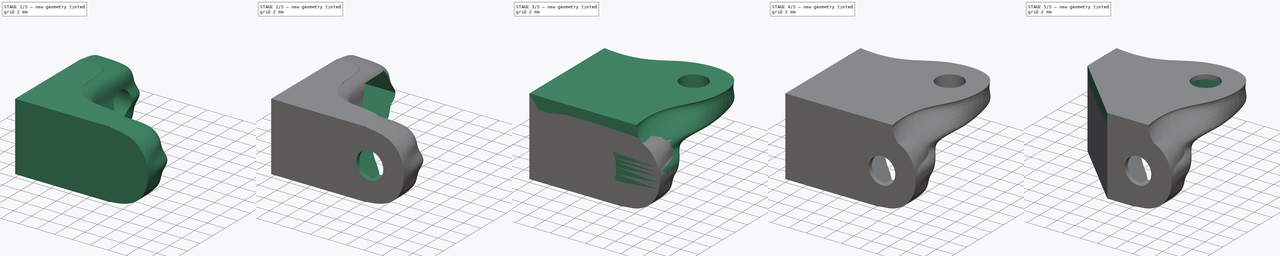
[diagram: build sequence overview — one tinted view per stage of 5, left to right]
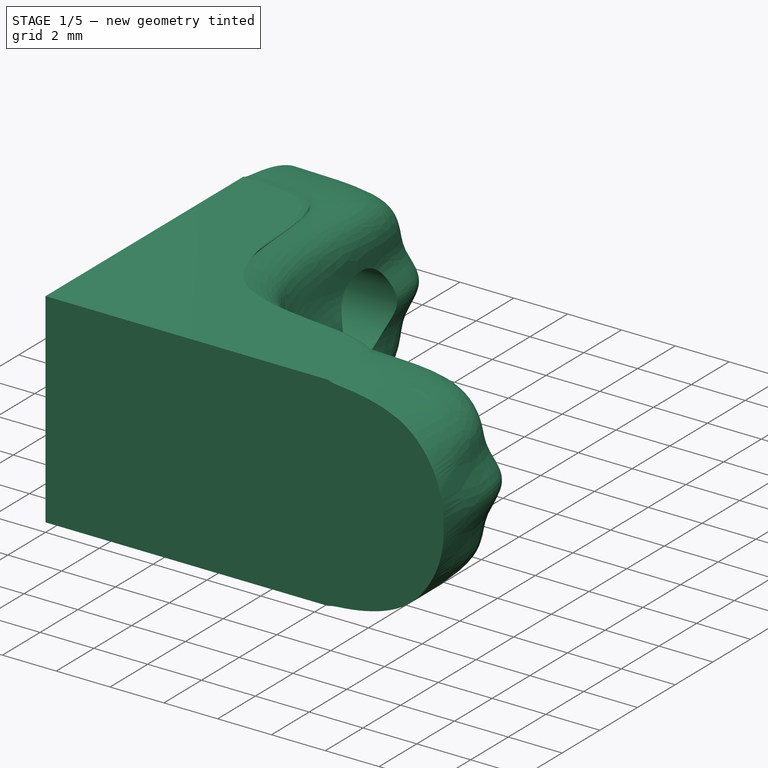
[diagram: stage 1 of 5 — iso view after this stage's code; geometry added in this stage tinted green]
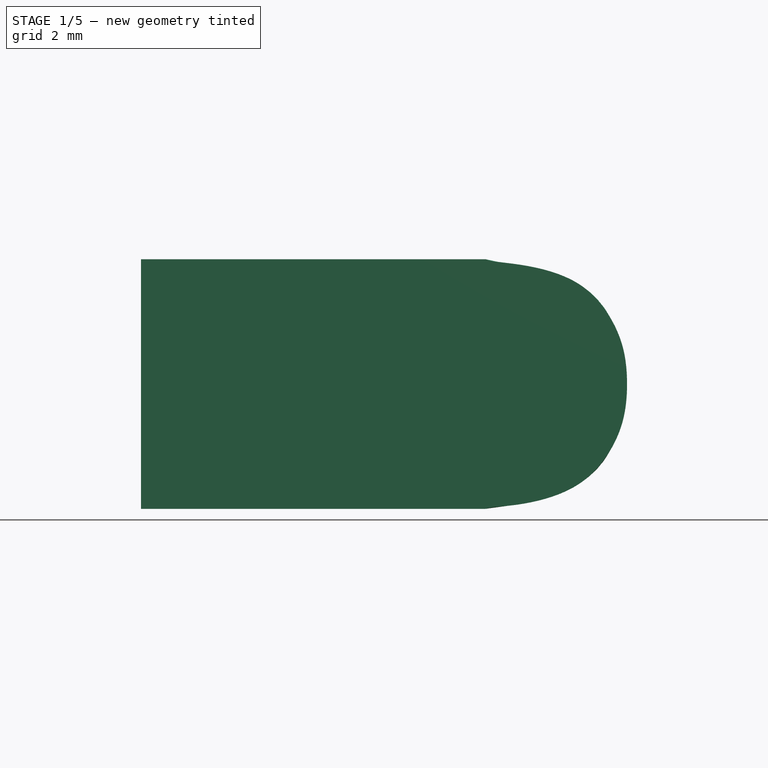
[diagram: stage 1 of 5 — front view after this stage's code; geometry added in this stage tinted green]
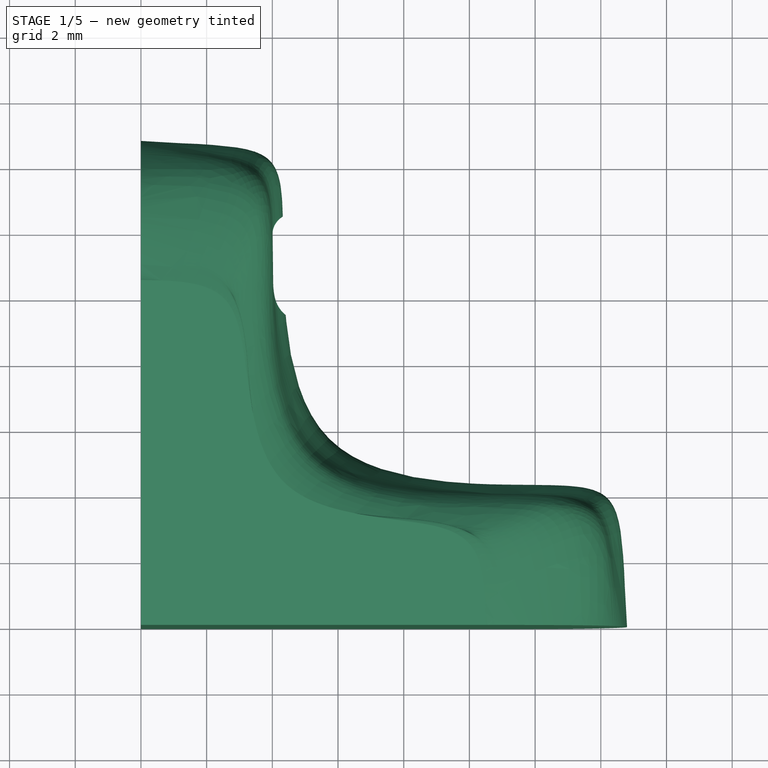
[diagram: stage 1 of 5 — top view after this stage's code; geometry added in this stage tinted green]
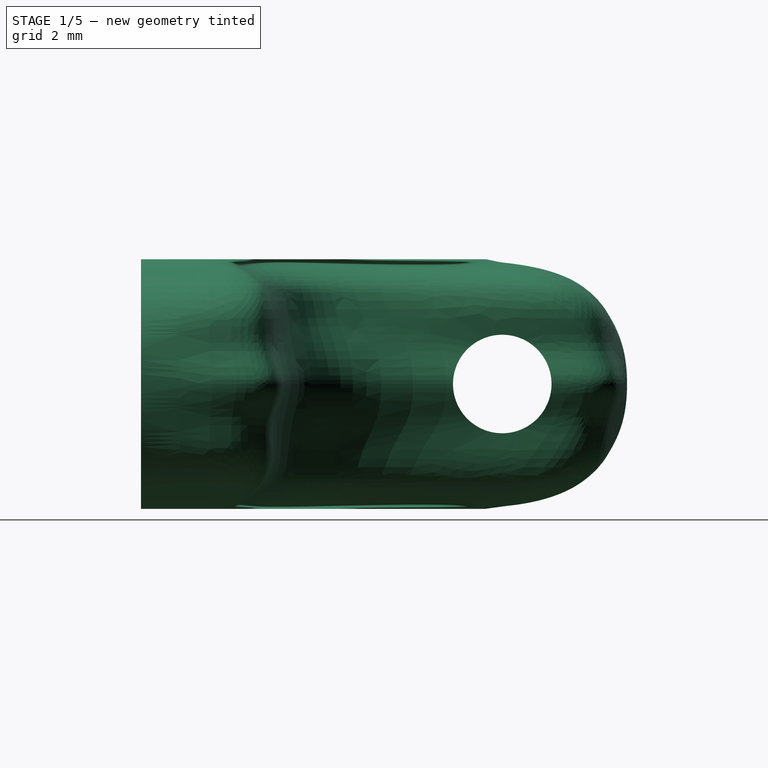
[diagram: stage 1 of 5 — right view after this stage's code; geometry added in this stage tinted green]
FCSTD DOCUMENT  (FreeCAD 1.1R)
Label: M3_Brackets
License: All rights reserved
LicenseURL: https://en.wikipedia.org/wiki/All_rights_reserved
objects: Sketcher::SketchObject×35, PartDesign::Pocket×12, App::Point×8, PartDesign::AdditiveLoft×2, PartDesign::Chamfer×2, PartDesign::Body×2, App::DocumentObjectGroup×1
note: 120 computed .brp shape members not serialized (recipe doc carries the construction recipe); baked Part::Feature solids carry a one-line shape summary decoded from their .brp

FEATURE [PartDesign::Body] Body  label="3_ways"
  AllowCompound = false
  Group = -> [Sketch,Sketch002,AdditiveLoft,Sketch004,Sketch005,Sketch007,Pocket,Pocket001,Pocket002,Sketch008,Pocket003,Sketch009,Pocket004,Sketch010,Pocket005,Sketch011,Chamfer]
  Origin = -> Origin
  Placement = pos=(0,0,-20.564) rot=(0.862856,-0.357407,0.357407;1.71777rad)
  Tip = -> Chamfer
FEATURE [App::Point] Origin011
  Role = Origin
FEATURE [App::Point] Origin013
  Role = Origin
FEATURE [App::Point] Origin015
  Role = Origin
FEATURE [Sketcher::SketchObject] Sketch030
  ArcFitTolerance = 1e-06
  AttachmentOffset = pos=(0,0,1.2) rot=(0,0,1;0rad)
  AttachmentSupport = -> [Origin010]
  ExternalTypes = [0]
  FullyConstrained = true
  MakeInternals = false
  MapMode = 5
  Placement = pos=(0,0,1.2) rot=(0,0,1;0rad)
  sketch-geometry (16):
    g0: LineSegment StartX=0 StartY=10.5 StartZ=0 EndX=0 EndY=0 EndZ=0
    g1: LineSegment StartX=0 StartY=0 StartZ=0 EndX=10.5 EndY=0 EndZ=0
    g2-g8: Circle [constr] x7 (B-spline internal-alignment scaffolding for g9; pole/knot coordinates omitted)
    g9: BSplineCurve PolesCount=7 KnotsCount=5 Degree=3 IsPeriodic=0
    g10-g14: GeomPoint [constr] x5 (B-spline internal-alignment scaffolding for g9; pole/knot coordinates omitted)
    g15: LineSegment [constr] StartX=0 StartY=0 StartZ=0 EndX=70.7107 EndY=70.7107 EndZ=0
  constraints (22):
    c: PointOnObject(g0,g-2)
    c: Coincident(g0,g-1)
    c: Coincident(g0,g1)
    c: PointOnObject(g1,g-1)
    c: Weight(g2) = 1
    c: Equal(g2, g3-g8) x6
    c: InternalAlignment(g2-g8 -> g9) x7
    c: InternalAlignment(g10-g14 -> g9) x5
    c: Coincident(g2,g0)
    c: Coincident(g8,g1)
    c: Coincident(g15,g0)
    c: Symmetric(g6,g4,g15)
    c: Symmetric(g3,g7,g15)
    c: PointOnObject(g5,g15)
    c: Symmetric(g9,g9,g15)
    c: DistanceY(g0,g0) = 10.5
    c: Distance(g4,g-1) = 10
    c: DistanceY(g-1,g3) = 10.5
    c: Distance(g5,g-1) = 4.5
    c: Distance(g3,g-2) = 2
    c: Distance(g11,g-2) = 3
    c: Distance(g15,g15) = 100
FEATURE [Sketcher::SketchObject] Sketch031
  ArcFitTolerance = 1e-06
  AttachmentOffset = pos=(0,0,4) rot=(0,0,1;0rad)
  AttachmentSupport = -> [Origin012]
  ExternalTypes = [0]
  FullyConstrained = true
  MakeInternals = false
  MapMode = 5
  Placement = pos=(0,0,4) rot=(0,0,1;0rad)
  sketch-geometry (16):
    g0: LineSegment StartX=0 StartY=14.7 StartZ=0 EndX=0 EndY=0 EndZ=0
    g1: LineSegment StartX=0 StartY=0 StartZ=0 EndX=14.7 EndY=0 EndZ=0
    g2-g8: Circle [constr] x7 (B-spline internal-alignment scaffolding for g9; pole/knot coordinates omitted)
    g9: BSplineCurve PolesCount=7 KnotsCount=5 Degree=3 IsPeriodic=0
    g10-g14: GeomPoint [constr] x5 (B-spline internal-alignment scaffolding for g9; pole/knot coordinates omitted)
    g15: LineSegment [constr] StartX=0 StartY=0 StartZ=0 EndX=70.7107 EndY=70.7107 EndZ=0
  constraints (22):
    c: PointOnObject(g0,g-2)
    c: Coincident(g0,g-1)
    c: Coincident(g0,g1)
    c: PointOnObject(g1,g-1)
    c: Weight(g2) = 1
    c: Equal(g2, g3-g8) x6
    c: InternalAlignment(g2-g8 -> g9) x7
    c: InternalAlignment(g10-g14 -> g9) x5
    c: Coincident(g2,g0)
    c: Coincident(g8,g1)
    c: Coincident(g15,g0)
    c: Symmetric(g6,g4,g15)
    c: Symmetric(g3,g7,g15)
    c: PointOnObject(g5,g15)
    c: Symmetric(g9,g9,g15)
    c: DistanceY(g0,g0) = 14.7
    c: Distance(g4,g-1) = 14.6
    c: DistanceY(g-1,g3) = 14.2
    c: Distance(g5,g-1) = 5.2
    c: Distance(g3,g-2) = 3.5
    c: Distance(g11,g-2) = 4
    c: Distance(g15,g-1) = 100
FEATURE [Sketcher::SketchObject] Sketch032
  ArcFitTolerance = 1e-06
  AttachmentSupport = -> [Origin010]
  ExternalTypes = [0]
  FullyConstrained = true
  MakeInternals = false
  MapMode = 5
  Placement = pos=(0,0,0) rot=(0.57735,0.57735,0.57735;2.0944rad)
  sketch-geometry (1):
    g0: Circle CenterX=11 CenterY=5 CenterZ=0 NormalX=0 NormalY=0 NormalZ=1 AngleXU=0 Radius=1.5
  constraints (3):
    c: Diameter(g0) = 3
    c: Distance(g0,g-1) = 5
    c: Distance(g0,g-2) = 11
FEATURE [Sketcher::SketchObject] Sketch033
  ArcFitTolerance = 1e-06
  AttachmentSupport = -> [Origin010]
  ExternalTypes = [0]
  FullyConstrained = true
  MakeInternals = false
  MapMode = 5
  Placement = pos=(0,0,0) rot=(1,0,0;1.5708rad)
  sketch-geometry (1):
    g0: Circle CenterX=11 CenterY=5 CenterZ=0 NormalX=0 NormalY=0 NormalZ=1 AngleXU=0 Radius=1.5
  constraints (3):
    c: Diameter(g0) = 3
    c: Distance(g0,g-1) = 5
    c: Distance(g0,g-2) = 11
FEATURE [Sketcher::SketchObject] Sketch034
  ArcFitTolerance = 1e-06
  AttachmentSupport = -> [Origin010]
  ExternalTypes = [0]
  FullyConstrained = true
  MakeInternals = false
  MapMode = 5
  sketch-geometry (1):
    g0: Circle CenterX=11 CenterY=11 CenterZ=0 NormalX=0 NormalY=0 NormalZ=1 AngleXU=0 Radius=1.5
  constraints (3):
    c: Diameter(g0) = 3
    c: Distance(g0,g-2) = 11
    c: Distance(g0,g-1) = 11
FEATURE [Sketcher::SketchObject] Sketch035
  ArcFitTolerance = 1e-06
  AttachmentOffset = pos=(0,0,-6) rot=(0,0,1;0rad)
  AttachmentSupport = -> [Origin010]
  ExternalTypes = [0]
  FullyConstrained = true
  MakeInternals = false
  MapMode = 5
  Placement = pos=(0,6,-1.3e-15) rot=(1,0,0;1.5708rad)
  sketch-geometry (7):
    g0: LineSegment StartX=12.625 StartY=7.81458 StartZ=0 EndX=9.375 EndY=7.81458 EndZ=0
    g1: LineSegment StartX=9.375 StartY=7.81458 StartZ=0 EndX=7.75 EndY=5 EndZ=0
    g2: LineSegment StartX=7.75 StartY=5 StartZ=0 EndX=9.375 EndY=2.18542 EndZ=0
    g3: LineSegment StartX=9.375 StartY=2.18542 StartZ=0 EndX=12.625 EndY=2.18542 EndZ=0
    g4: LineSegment StartX=12.625 StartY=2.18542 StartZ=0 EndX=14.25 EndY=5 EndZ=0
    g5: LineSegment StartX=14.25 StartY=5 StartZ=0 EndX=12.625 EndY=7.81458 EndZ=0
    g6: Circle [constr] CenterX=11 CenterY=5 CenterZ=0 NormalX=0 NormalY=0 NormalZ=1 AngleXU=0 Radius=3.25
  constraints (17):
    c: Coincident(g0,g1)
    c: Coincident(g1,g2)
    c: Coincident(g2,g3)
    c: Coincident(g3,g4)
    c: Coincident(g4,g5)
    c: Coincident(g5,g0)
    c: Equal(g0, g1-g5) x5
    c: PointOnObject(g0,g6)
    c: PointOnObject(g1,g6)
    c: PointOnObject(g2,g6)
    c: PointOnObject(g3,g6)
    c: PointOnObject(g4,g6)
    c: PointOnObject(g5,g6)
    c: Radius(g6) = 3.25
    c: Distance(g6,g-1) = 5
    c: Distance(g6,g-2) = 11
    c: Parallel(g3,g-1)
FEATURE [Sketcher::SketchObject] Sketch036
  ArcFitTolerance = 1e-06
  AttachmentOffset = pos=(0,0,6) rot=(0,0,1;0rad)
  AttachmentSupport = -> [Origin010]
  ExternalTypes = [0]
  FullyConstrained = true
  MakeInternals = false
  MapMode = 5
  Placement = pos=(6,0,0) rot=(0.57735,0.57735,0.57735;2.0944rad)
  sketch-geometry (7):
    g0: LineSegment StartX=9.375 StartY=7.81458 StartZ=0 EndX=7.75 EndY=5 EndZ=0
    g1: LineSegment StartX=7.75 StartY=5 StartZ=0 EndX=9.375 EndY=2.18542 EndZ=0
    g2: LineSegment StartX=9.375 StartY=2.18542 StartZ=0 EndX=12.625 EndY=2.18542 EndZ=0
    g3: LineSegment StartX=12.625 StartY=2.18542 StartZ=0 EndX=14.25 EndY=5 EndZ=0
    g4: LineSegment StartX=14.25 StartY=5 StartZ=0 EndX=12.625 EndY=7.81458 EndZ=0
    g5: LineSegment StartX=12.625 StartY=7.81458 StartZ=0 EndX=9.375 EndY=7.81458 EndZ=0
    g6: Circle [constr] CenterX=11 CenterY=5 CenterZ=0 NormalX=0 NormalY=0 NormalZ=1 AngleXU=0 Radius=3.25
  constraints (17):
    c: Coincident(g0,g1)
    c: Coincident(g1,g2)
    c: Coincident(g2,g3)
    c: Coincident(g3,g4)
    c: Coincident(g4,g5)
    c: Coincident(g5,g0)
    c: Equal(g0, g1-g5) x5
    c: PointOnObject(g0,g6)
    c: PointOnObject(g1,g6)
    c: PointOnObject(g2,g6)
    c: PointOnObject(g3,g6)
    c: PointOnObject(g4,g6)
    c: PointOnObject(g5,g6)
    c: Radius(g6) = 3.25
    c: Parallel(g2,g-1)
    c: Distance(g6,g-1) = 5
    c: Distance(g6,g-2) = 11
FEATURE [Sketcher::SketchObject] Sketch037  label="Hex Top001"
  ArcFitTolerance = 1e-06
  AttachmentSupport = -> [Origin010]
  ExternalTypes = [0]
  FullyConstrained = true
  MakeInternals = false
  MapMode = 5
  sketch-geometry (8):
    g0: LineSegment StartX=13.2981 StartY=8.7019 StartZ=0 EndX=14.1393 EndY=11.8412 EndZ=0
    g1: LineSegment StartX=14.1393 StartY=11.8412 StartZ=0 EndX=11.8412 EndY=14.1393 EndZ=0
    g2: LineSegment StartX=11.8412 StartY=14.1393 StartZ=0 EndX=8.7019 EndY=13.2981 EndZ=0
    g3: LineSegment StartX=8.7019 StartY=13.2981 StartZ=0 EndX=7.86074 EndY=10.1588 EndZ=0
    g4: LineSegment StartX=7.86074 StartY=10.1588 StartZ=0 EndX=10.1588 EndY=7.86074 EndZ=0
    g5: LineSegment StartX=10.1588 StartY=7.86074 StartZ=0 EndX=13.2981 EndY=8.7019 EndZ=0
    g6: Circle [constr] CenterX=11 CenterY=11 CenterZ=0 NormalX=0 NormalY=0 NormalZ=1 AngleXU=0 Radius=3.25
    g7: LineSegment [constr] StartX=0 StartY=0 StartZ=0 EndX=11 EndY=11 EndZ=0
  constraints (19):
    c: Coincident(g0,g1)
    c: Coincident(g1,g2)
    c: Coincident(g2,g3)
    c: Coincident(g3,g4)
    c: Coincident(g4,g5)
    c: Coincident(g5,g0)
    c: Equal(g0, g1-g5) x5
    c: PointOnObject(g0,g6)
    c: PointOnObject(g1,g6)
    c: PointOnObject(g2,g6)
    c: PointOnObject(g3,g6)
    c: PointOnObject(g4,g6)
    c: PointOnObject(g5,g6)
    c: Radius(g6) = 3.25
    c: Distance(g6,g-1) = 11
    c: Distance(g6,g-2) = 11
    c: Coincident(g7,g-1)
    c: Coincident(g7,g6)
    c: Perpendicular(g4,g7)
FEATURE [Sketcher::SketchObject] Sketch038
  ArcFitTolerance = 1e-06
  AttachmentOffset = pos=(0,0,3) rot=(0,0,1;0rad)
  AttachmentSupport = -> [Origin014]
  ExternalTypes = [0]
  FullyConstrained = true
  MakeInternals = false
  MapMode = 5
  Placement = pos=(0,0,3) rot=(0,0,1;0rad)
  sketch-geometry (16):
    g0: LineSegment StartX=0 StartY=14.3 StartZ=0 EndX=0 EndY=0 EndZ=0
    g1: LineSegment StartX=0 StartY=0 StartZ=0 EndX=14.3 EndY=0 EndZ=0
    g2-g8: Circle [constr] x7 (B-spline internal-alignment scaffolding for g9; pole/knot coordinates omitted)
    g9: BSplineCurve PolesCount=7 KnotsCount=5 Degree=3 IsPeriodic=0
    g10-g14: GeomPoint [constr] x5 (B-spline internal-alignment scaffolding for g9; pole/knot coordinates omitted)
    g15: LineSegment [constr] StartX=0 StartY=0 StartZ=0 EndX=70.7107 EndY=70.7107 EndZ=0
  constraints (22):
    c: PointOnObject(g0,g-2)
    c: Coincident(g0,g-1)
    c: Coincident(g0,g1)
    c: PointOnObject(g1,g-1)
    c: Weight(g2) = 1
    c: Equal(g2, g3-g8) x6
    c: InternalAlignment(g2-g8 -> g9) x7
    c: InternalAlignment(g10-g14 -> g9) x5
    c: Coincident(g2,g0)
    c: Coincident(g8,g1)
    c: Coincident(g15,g0)
    c: Symmetric(g6,g4,g15)
    c: Symmetric(g3,g7,g15)
    c: PointOnObject(g5,g15)
    c: Symmetric(g9,g9,g15)
    c: DistanceY(g0,g0) = 14.3
    c: Distance(g4,g-1) = 13.5
    c: DistanceY(g-1,g3) = 14.3
    c: Distance(g5,g-1) = 5
    c: Distance(g3,g-2) = 3.5
    c: Distance(g11,g-2) = 4
    c: Distance(g15,g15) = 100
FEATURE [Sketcher::SketchObject] Sketch039
  ArcFitTolerance = 1e-06
  AttachmentOffset = pos=(0,0,2) rot=(0,0,1;0rad)
  AttachmentSupport = -> [Origin014]
  ExternalTypes = [0]
  FullyConstrained = true
  MakeInternals = false
  MapMode = 5
  Placement = pos=(0,0,2) rot=(0,0,1;0rad)
  sketch-geometry (16):
    g0: LineSegment StartX=0 StartY=13.4 StartZ=0 EndX=0 EndY=0 EndZ=0
    g1: LineSegment StartX=0 StartY=0 StartZ=0 EndX=13.4 EndY=0 EndZ=0
    g2-g8: Circle [constr] x7 (B-spline internal-alignment scaffolding for g9; pole/knot coordinates omitted)
    g9: BSplineCurve PolesCount=7 KnotsCount=5 Degree=3 IsPeriodic=0
    g10-g14: GeomPoint [constr] x5 (B-spline internal-alignment scaffolding for g9; pole/knot coordinates omitted)
    g15: LineSegment [constr] StartX=0 StartY=0 StartZ=0 EndX=70.7107 EndY=70.7107 EndZ=0
  constraints (22):
    c: PointOnObject(g0,g-2)
    c: Coincident(g0,g-1)
    c: Coincident(g0,g1)
    c: PointOnObject(g1,g-1)
    c: Weight(g2) = 1
    c: Equal(g2, g3-g8) x6
    c: InternalAlignment(g2-g8 -> g9) x7
    c: InternalAlignment(g10-g14 -> g9) x5
    c: Coincident(g2,g0)
    c: Coincident(g8,g1)
    c: Coincident(g15,g0)
    c: Symmetric(g6,g4,g15)
    c: Symmetric(g3,g7,g15)
    c: PointOnObject(g5,g15)
    c: Symmetric(g9,g9,g15)
    c: DistanceY(g0,g0) = 13.4
    c: Distance(g4,g-1) = 12.5
    c: DistanceY(g-1,g3) = 13.4
    c: Distance(g5,g-1) = 5
    c: Distance(g3,g-2) = 3.5
    c: Distance(g11,g-2) = 3.7
    c: Distance(g15,g15) = 100
FEATURE [Sketcher::SketchObject] Sketch040
  ArcFitTolerance = 1e-06
  AttachmentOffset = pos=(0,0,1.275) rot=(0,0,1;0rad)
  AttachmentSupport = -> [Origin014]
  ExternalTypes = [0]
  FullyConstrained = true
  MakeInternals = false
  MapMode = 5
  Placement = pos=(0,0,1.275) rot=(0,0,1;0rad)
  sketch-geometry (16):
    g0: LineSegment StartX=0 StartY=11 StartZ=0 EndX=0 EndY=0 EndZ=0
    g1: LineSegment StartX=0 StartY=0 StartZ=0 EndX=11 EndY=0 EndZ=0
    g2-g8: Circle [constr] x7 (B-spline internal-alignment scaffolding for g9; pole/knot coordinates omitted)
    g9: BSplineCurve PolesCount=7 KnotsCount=5 Degree=3 IsPeriodic=0
    g10-g14: GeomPoint [constr] x5 (B-spline internal-alignment scaffolding for g9; pole/knot coordinates omitted)
    g15: LineSegment [constr] StartX=0 StartY=0 StartZ=0 EndX=70.7107 EndY=70.7107 EndZ=0
  constraints (22):
    c: PointOnObject(g0,g-2)
    c: Coincident(g0,g-1)
    c: Coincident(g0,g1)
    c: PointOnObject(g1,g-1)
    c: Weight(g2) = 1
    c: Equal(g2, g3-g8) x6
    c: InternalAlignment(g2-g8 -> g9) x7
    c: InternalAlignment(g10-g14 -> g9) x5
    c: Coincident(g2,g0)
    c: Coincident(g8,g1)
    c: Coincident(g15,g0)
    c: Symmetric(g6,g4,g15)
    c: Symmetric(g3,g7,g15)
    c: PointOnObject(g5,g15)
    c: Symmetric(g9,g9,g15)
    c: DistanceY(g0,g0) = 11
    c: Distance(g4,g-1) = 10.5
    c: DistanceY(g-1,g3) = 11
    c: Distance(g5,g-1) = 4
    c: Distance(g3,g-2) = 2
    c: Distance(g11,g-2) = 3
    c: Distance(g15,g15) = 100
FEATURE [Sketcher::SketchObject] Sketch041
  ArcFitTolerance = 1e-06
  AttachmentOffset = pos=(0,0,5) rot=(0,0,1;0rad)
  AttachmentSupport = -> [Origin012]
  ExternalTypes = [0]
  FullyConstrained = true
  MakeInternals = false
  MapMode = 5
  Placement = pos=(0,0,5) rot=(0,0,1;0rad)
  sketch-geometry (16):
    g0: LineSegment StartX=0 StartY=14.8 StartZ=0 EndX=0 EndY=0 EndZ=0
    g1: LineSegment StartX=0 StartY=0 StartZ=0 EndX=14.8 EndY=0 EndZ=0
    g2-g8: Circle [constr] x7 (B-spline internal-alignment scaffolding for g9; pole/knot coordinates omitted)
    g9: BSplineCurve PolesCount=7 KnotsCount=5 Degree=3 IsPeriodic=0
    g10-g14: GeomPoint [constr] x5 (B-spline internal-alignment scaffolding for g9; pole/knot coordinates omitted)
    g15: LineSegment [constr] StartX=0 StartY=0 StartZ=0 EndX=70.7107 EndY=70.7107 EndZ=0
  constraints (22):
    c: PointOnObject(g0,g-2)
    c: Coincident(g0,g-1)
    c: Coincident(g0,g1)
    c: PointOnObject(g1,g-1)
    c: Weight(g2) = 1
    c: Equal(g2, g3-g8) x6
    c: InternalAlignment(g2-g8 -> g9) x7
    c: InternalAlignment(g10-g14 -> g9) x5
    c: Coincident(g2,g0)
    c: Coincident(g8,g1)
    c: Coincident(g15,g0)
    c: Symmetric(g6,g4,g15)
    c: Symmetric(g3,g7,g15)
    c: PointOnObject(g5,g15)
    c: Symmetric(g9,g9,g15)
    c: DistanceY(g0,g0) = 14.8
    c: Distance(g4,g-1) = 14.9
    c: DistanceY(g-1,g3) = 14.6
    c: Distance(g5,g-1) = 5.2
    c: Distance(g3,g-2) = 3.6
    c: Distance(g11,g-2) = 4.3
    c: Distance(g15,g-1) = 100
FEATURE [Sketcher::SketchObject] Sketch043
  ArcFitTolerance = 1e-06
  AttachmentOffset = pos=(0,0,6) rot=(0,0,1;0rad)
  AttachmentSupport = -> [Origin012]
  ExternalTypes = [0]
  FullyConstrained = true
  MakeInternals = false
  MapMode = 5
  Placement = pos=(0,0,6) rot=(0,0,1;0rad)
  sketch-geometry (16):
    g0: LineSegment StartX=0 StartY=14.7 StartZ=0 EndX=0 EndY=0 EndZ=0
    g1: LineSegment StartX=0 StartY=0 StartZ=0 EndX=14.7 EndY=0 EndZ=0
    g2-g8: Circle [constr] x7 (B-spline internal-alignment scaffolding for g9; pole/knot coordinates omitted)
    g9: BSplineCurve PolesCount=7 KnotsCount=5 Degree=3 IsPeriodic=0
    g10-g14: GeomPoint [constr] x5 (B-spline internal-alignment scaffolding for g9; pole/knot coordinates omitted)
    g15: LineSegment [constr] StartX=0 StartY=0 StartZ=0 EndX=70.7107 EndY=70.7107 EndZ=0
  constraints (22):
    c: PointOnObject(g0,g-2)
    c: Coincident(g0,g-1)
    c: Coincident(g0,g1)
    c: PointOnObject(g1,g-1)
    c: Weight(g2) = 1
    c: Equal(g2, g3-g8) x6
    c: InternalAlignment(g2-g8 -> g9) x7
    c: InternalAlignment(g10-g14 -> g9) x5
    c: Coincident(g2,g0)
    c: Coincident(g8,g1)
    c: Coincident(g15,g0)
    c: Symmetric(g6,g4,g15)
    c: Symmetric(g3,g7,g15)
    c: PointOnObject(g5,g15)
    c: Symmetric(g9,g9,g15)
    c: DistanceY(g0,g0) = 14.7
    c: Distance(g4,g-1) = 14.6
    c: DistanceY(g-1,g3) = 14.2
    c: Distance(g5,g-1) = 5.2
    c: Distance(g3,g-2) = 3.5
    c: Distance(g11,g-2) = 4
    c: Distance(g15,g-1) = 100
FEATURE [Sketcher::SketchObject] Sketch044
  ArcFitTolerance = 1e-06
  AttachmentOffset = pos=(0,0,7) rot=(0,0,1;0rad)
  AttachmentSupport = -> [Origin014]
  ExternalTypes = [0]
  FullyConstrained = true
  MakeInternals = false
  MapMode = 5
  Placement = pos=(0,0,7) rot=(0,0,1;0rad)
  sketch-geometry (16):
    g0: LineSegment StartX=0 StartY=14.3 StartZ=0 EndX=0 EndY=0 EndZ=0
    g1: LineSegment StartX=0 StartY=0 StartZ=0 EndX=14.3 EndY=0 EndZ=0
    g2-g8: Circle [constr] x7 (B-spline internal-alignment scaffolding for g9; pole/knot coordinates omitted)
    g9: BSplineCurve PolesCount=7 KnotsCount=5 Degree=3 IsPeriodic=0
    g10-g14: GeomPoint [constr] x5 (B-spline internal-alignment scaffolding for g9; pole/knot coordinates omitted)
    g15: LineSegment [constr] StartX=0 StartY=0 StartZ=0 EndX=70.7107 EndY=70.7107 EndZ=0
  constraints (22):
    c: PointOnObject(g0,g-2)
    c: Coincident(g0,g-1)
    c: Coincident(g0,g1)
    c: PointOnObject(g1,g-1)
    c: Weight(g2) = 1
    c: Equal(g2, g3-g8) x6
    c: InternalAlignment(g2-g8 -> g9) x7
    c: InternalAlignment(g10-g14 -> g9) x5
    c: Coincident(g2,g0)
    c: Coincident(g8,g1)
    c: Coincident(g15,g0)
    c: Symmetric(g6,g4,g15)
    c: Symmetric(g3,g7,g15)
    c: PointOnObject(g5,g15)
    c: Symmetric(g9,g9,g15)
    c: DistanceY(g0,g0) = 14.3
    c: Distance(g4,g-1) = 13.5
    c: DistanceY(g-1,g3) = 14.3
    c: Distance(g5,g-1) = 5
    c: Distance(g3,g-2) = 3.5
    c: Distance(g11,g-2) = 4
    c: Distance(g15,g15) = 100
FEATURE [Sketcher::SketchObject] Sketch045
  ArcFitTolerance = 1e-06
  AttachmentOffset = pos=(0,0,8) rot=(0,0,1;0rad)
  AttachmentSupport = -> [Origin014]
  ExternalTypes = [0]
  FullyConstrained = true
  MakeInternals = false
  MapMode = 5
  Placement = pos=(0,0,8) rot=(0,0,1;0rad)
  sketch-geometry (16):
    g0: LineSegment StartX=0 StartY=13.4 StartZ=0 EndX=0 EndY=0 EndZ=0
    g1: LineSegment StartX=0 StartY=0 StartZ=0 EndX=13.4 EndY=0 EndZ=0
    g2-g8: Circle [constr] x7 (B-spline internal-alignment scaffolding for g9; pole/knot coordinates omitted)
    g9: BSplineCurve PolesCount=7 KnotsCount=5 Degree=3 IsPeriodic=0
    g10-g14: GeomPoint [constr] x5 (B-spline internal-alignment scaffolding for g9; pole/knot coordinates omitted)
    g15: LineSegment [constr] StartX=0 StartY=0 StartZ=0 EndX=70.7107 EndY=70.7107 EndZ=0
  constraints (22):
    c: PointOnObject(g0,g-2)
    c: Coincident(g0,g-1)
    c: Coincident(g0,g1)
    c: PointOnObject(g1,g-1)
    c: Weight(g2) = 1
    c: Equal(g2, g3-g8) x6
    c: InternalAlignment(g2-g8 -> g9) x7
    c: InternalAlignment(g10-g14 -> g9) x5
    c: Coincident(g2,g0)
    c: Coincident(g8,g1)
    c: Coincident(g15,g0)
    c: Symmetric(g6,g4,g15)
    c: Symmetric(g3,g7,g15)
    c: PointOnObject(g5,g15)
    c: Symmetric(g9,g9,g15)
    c: DistanceY(g0,g0) = 13.4
    c: Distance(g4,g-1) = 12.5
    c: DistanceY(g-1,g3) = 13.4
    c: Distance(g5,g-1) = 5
    c: Distance(g3,g-2) = 3.5
    c: Distance(g11,g-2) = 3.7
    c: Distance(g15,g15) = 100
FEATURE [Sketcher::SketchObject] Sketch046
  ArcFitTolerance = 1e-06
  AttachmentOffset = pos=(0,0,8.7) rot=(0,0,1;0rad)
  AttachmentSupport = -> [Origin014]
  ExternalTypes = [0]
  FullyConstrained = true
  MakeInternals = false
  MapMode = 5
  Placement = pos=(0,0,8.7) rot=(0,0,1;0rad)
  sketch-geometry (16):
    g0: LineSegment StartX=0 StartY=11 StartZ=0 EndX=0 EndY=0 EndZ=0
    g1: LineSegment StartX=0 StartY=0 StartZ=0 EndX=11 EndY=0 EndZ=0
    g2-g8: Circle [constr] x7 (B-spline internal-alignment scaffolding for g9; pole/knot coordinates omitted)
    g9: BSplineCurve PolesCount=7 KnotsCount=5 Degree=3 IsPeriodic=0
    g10-g14: GeomPoint [constr] x5 (B-spline internal-alignment scaffolding for g9; pole/knot coordinates omitted)
    g15: LineSegment [constr] StartX=0 StartY=0 StartZ=0 EndX=70.7107 EndY=70.7107 EndZ=0
  constraints (22):
    c: PointOnObject(g0,g-2)
    c: Coincident(g0,g-1)
    c: Coincident(g0,g1)
    c: PointOnObject(g1,g-1)
    c: Weight(g2) = 1
    c: Equal(g2, g3-g8) x6
    c: InternalAlignment(g2-g8 -> g9) x7
    c: InternalAlignment(g10-g14 -> g9) x5
    c: Coincident(g2,g0)
    c: Coincident(g8,g1)
    c: Coincident(g15,g0)
    c: Symmetric(g6,g4,g15)
    c: Symmetric(g3,g7,g15)
    c: PointOnObject(g5,g15)
    c: Symmetric(g9,g9,g15)
    c: DistanceY(g0,g0) = 11
    c: Distance(g4,g-1) = 10.5
    c: DistanceY(g-1,g3) = 11
    c: Distance(g5,g-1) = 4
    c: Distance(g3,g-2) = 2
    c: Distance(g11,g-2) = 3
    c: Distance(g15,g15) = 100
FEATURE [Sketcher::SketchObject] Sketch047
  ArcFitTolerance = 1e-06
  AttachmentOffset = pos=(0,0,8.8) rot=(0,0,1;0rad)
  AttachmentSupport = -> [Origin010]
  ExternalTypes = [0]
  FullyConstrained = true
  MakeInternals = false
  MapMode = 5
  Placement = pos=(0,0,8.8) rot=(0,0,1;0rad)
  sketch-geometry (16):
    g0: LineSegment StartX=0 StartY=10.5 StartZ=0 EndX=0 EndY=0 EndZ=0
    g1: LineSegment StartX=0 StartY=0 StartZ=0 EndX=10.5 EndY=0 EndZ=0
    g2-g8: Circle [constr] x7 (B-spline internal-alignment scaffolding for g9; pole/knot coordinates omitted)
    g9: BSplineCurve PolesCount=7 KnotsCount=5 Degree=3 IsPeriodic=0
    g10-g14: GeomPoint [constr] x5 (B-spline internal-alignment scaffolding for g9; pole/knot coordinates omitted)
    g15: LineSegment [constr] StartX=0 StartY=0 StartZ=0 EndX=70.7107 EndY=70.7107 EndZ=0
  constraints (22):
    c: PointOnObject(g0,g-2)
    c: Coincident(g0,g-1)
    c: Coincident(g0,g1)
    c: PointOnObject(g1,g-1)
    c: Weight(g2) = 1
    c: Equal(g2, g3-g8) x6
    c: InternalAlignment(g2-g8 -> g9) x7
    c: InternalAlignment(g10-g14 -> g9) x5
    c: Coincident(g2,g0)
    c: Coincident(g8,g1)
    c: Coincident(g15,g0)
    c: Symmetric(g6,g4,g15)
    c: Symmetric(g3,g7,g15)
    c: PointOnObject(g5,g15)
    c: Symmetric(g9,g9,g15)
    c: DistanceY(g0,g0) = 10.5
    c: Distance(g4,g-1) = 10
    c: DistanceY(g-1,g3) = 10.5
    c: Distance(g5,g-1) = 4.5
    c: Distance(g3,g-2) = 2
    c: Distance(g11,g-2) = 3
    c: Distance(g15,g15) = 100
FEATURE [PartDesign::AdditiveLoft] AdditiveLoft001
  Closed = false
  Profile = -> Sketch030
  Refine = true
  Ruled = false
  Sections = -> [Sketch040,Sketch039,Sketch038,Sketch031,Sketch041,Sketch043,Sketch044,Sketch045,Sketch046,Sketch047]
  Suppressed = false
FEATURE [PartDesign::Pocket] Pocket006
  BaseFeature = -> AdditiveLoft001
  Direction = (0,0,-1)
  Length = 11
  Length2 = 5
  Profile = -> Sketch034
  ReferenceAxis = -> Sketch034 [N_Axis]
  Refine = true
  Reversed = true
  SideType = 0
  Suppressed = false
  Type = 0
  Type2 = 0
FEATURE [PartDesign::Pocket] Pocket007
  BaseFeature = -> Pocket006
  Direction = (-1,0,0)
  Length = 6
  Length2 = 5
  Profile = -> Sketch032
  ReferenceAxis = -> Sketch032 [N_Axis]
  Refine = true
  Reversed = true
  SideType = 0
  Suppressed = false
  Type = 0
  Type2 = 0
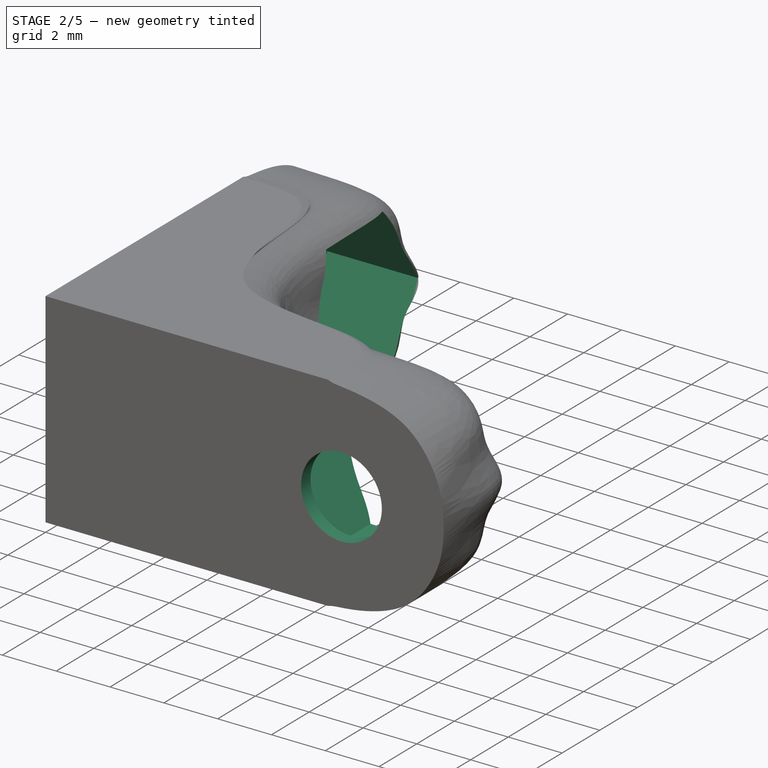
[diagram: stage 2 of 5 — iso view after this stage's code; geometry added in this stage tinted green]
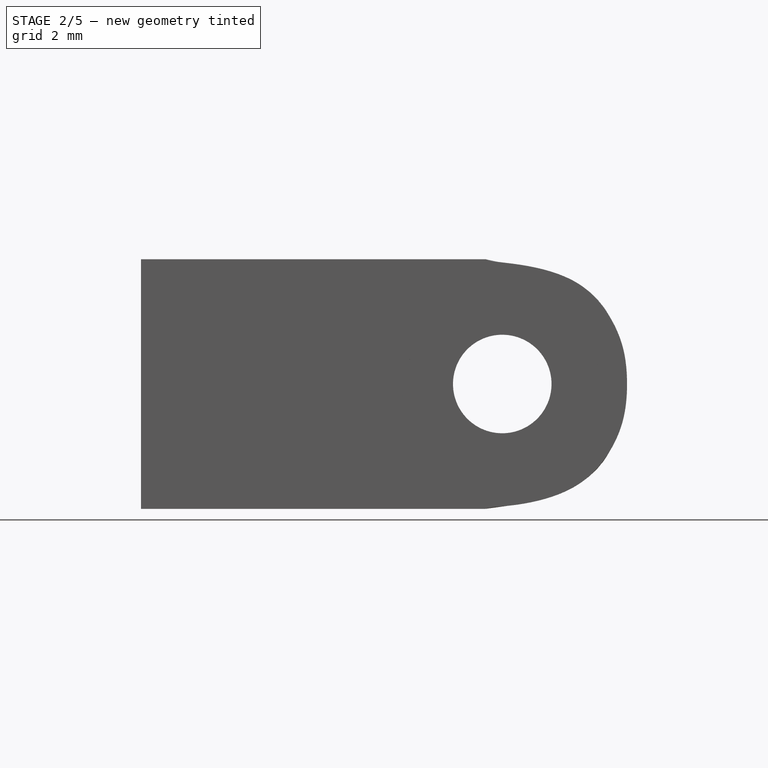
[diagram: stage 2 of 5 — front view after this stage's code; geometry added in this stage tinted green]
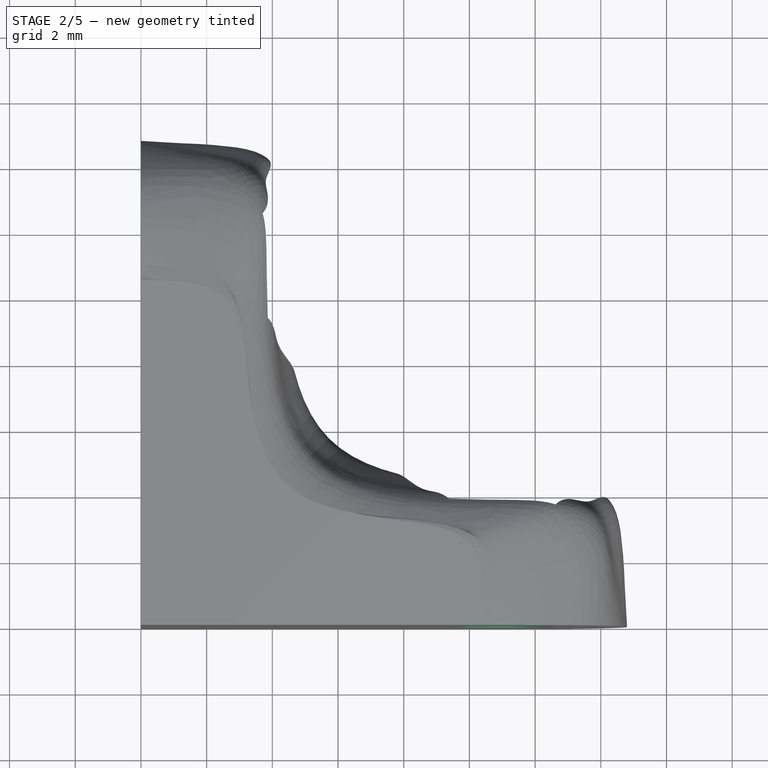
[diagram: stage 2 of 5 — top view after this stage's code; geometry added in this stage tinted green]
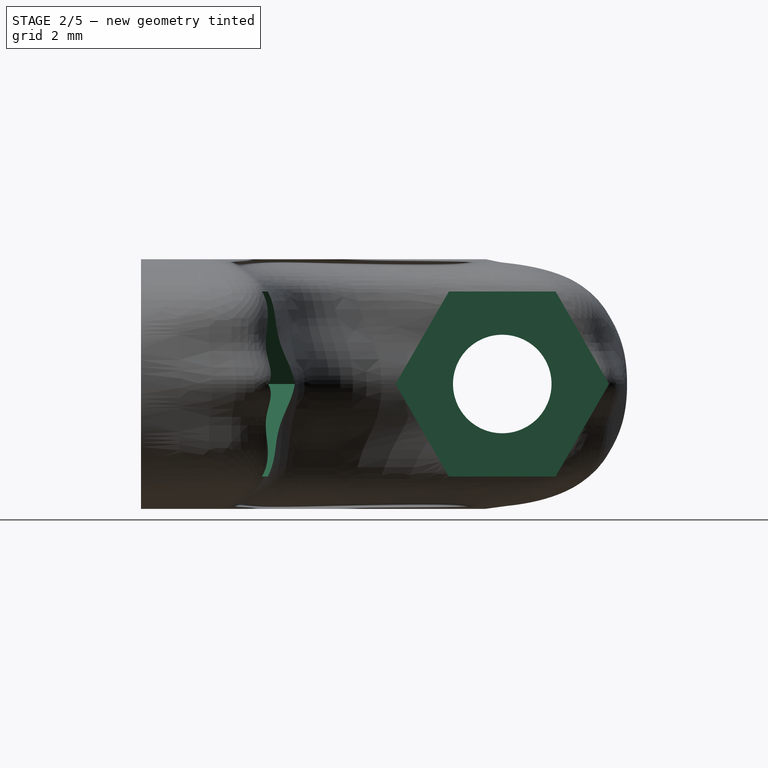
[diagram: stage 2 of 5 — right view after this stage's code; geometry added in this stage tinted green]
FEATURE [PartDesign::Pocket] Pocket008
  BaseFeature = -> Pocket007
  Direction = (0,1,-2e-16)
  Length = 6
  Length2 = 5
  Profile = -> Sketch033
  ReferenceAxis = -> Sketch033 [N_Axis]
  Refine = true
  SideType = 0
  Suppressed = false
  Type = 0
  Type2 = 0
FEATURE [PartDesign::Pocket] Pocket009
  BaseFeature = -> Pocket008
  Direction = (0,1,-2e-16)
  Length = 5.5
  Length2 = 5
  Profile = -> Sketch035
  ReferenceAxis = -> Sketch035 [N_Axis]
  Refine = true
  Reversed = true
  SideType = 0
  Suppressed = false
  Type = 0
  Type2 = 0
FEATURE [PartDesign::Pocket] Pocket010
  BaseFeature = -> Pocket009
  Direction = (-1,0,0)
  Length = 5.5
  Length2 = 5
  Profile = -> Sketch036
  ReferenceAxis = -> Sketch036 [N_Axis]
  Refine = true
  SideType = 0
  Suppressed = false
  Type = 0
  Type2 = 0
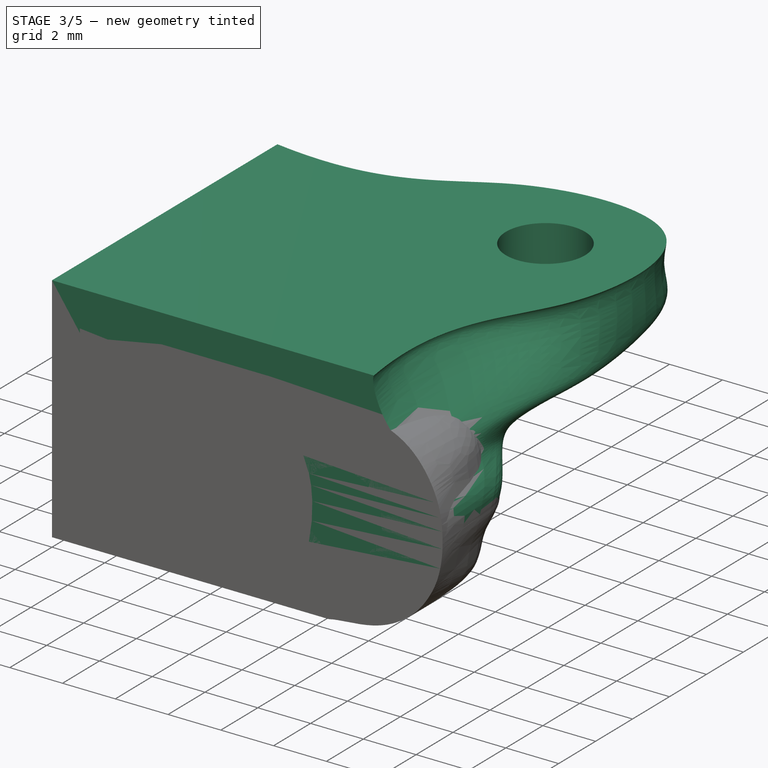
[diagram: stage 3 of 5 — iso view after this stage's code; geometry added in this stage tinted green]
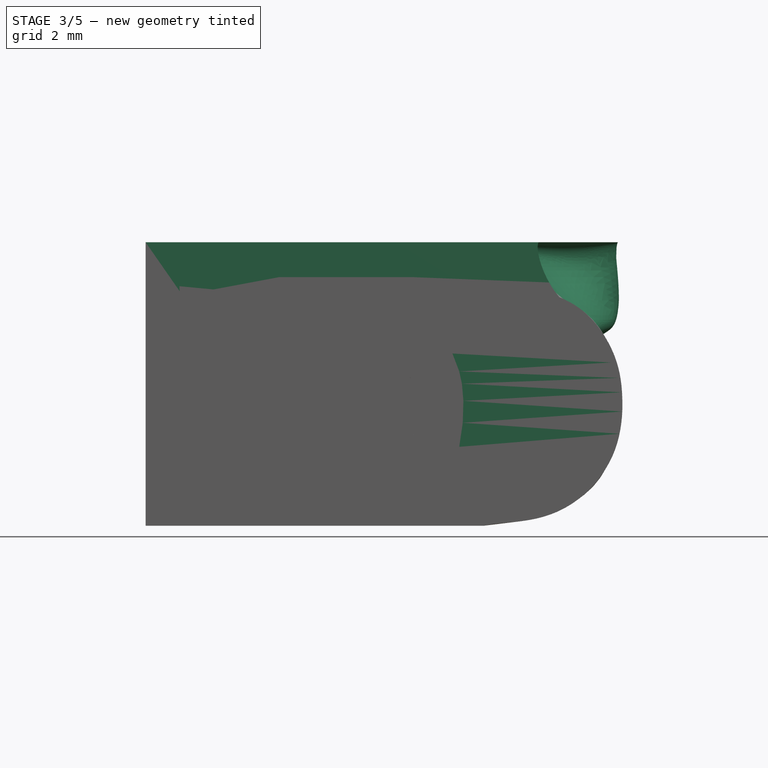
[diagram: stage 3 of 5 — front view after this stage's code; geometry added in this stage tinted green]
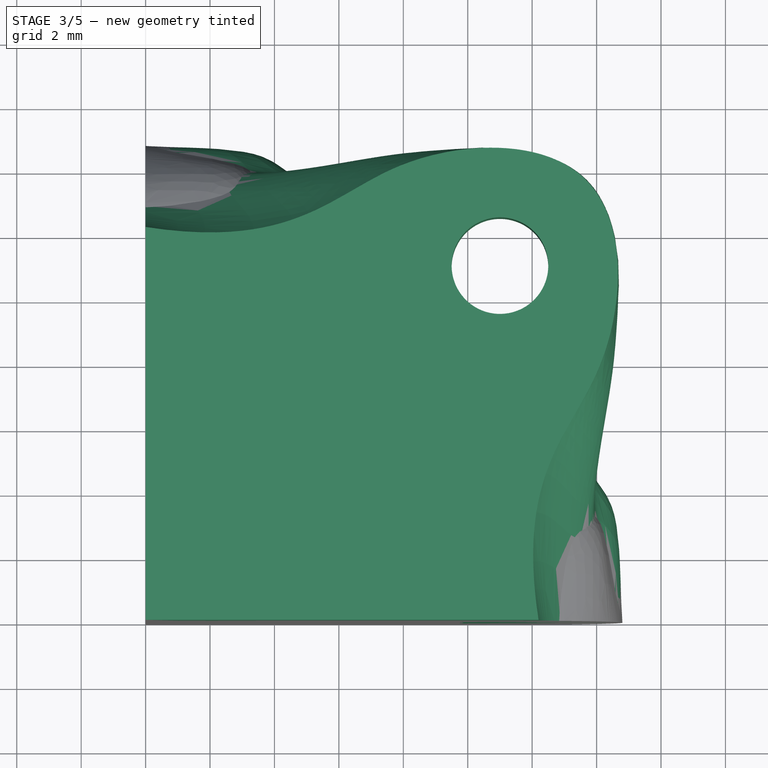
[diagram: stage 3 of 5 — top view after this stage's code; geometry added in this stage tinted green]
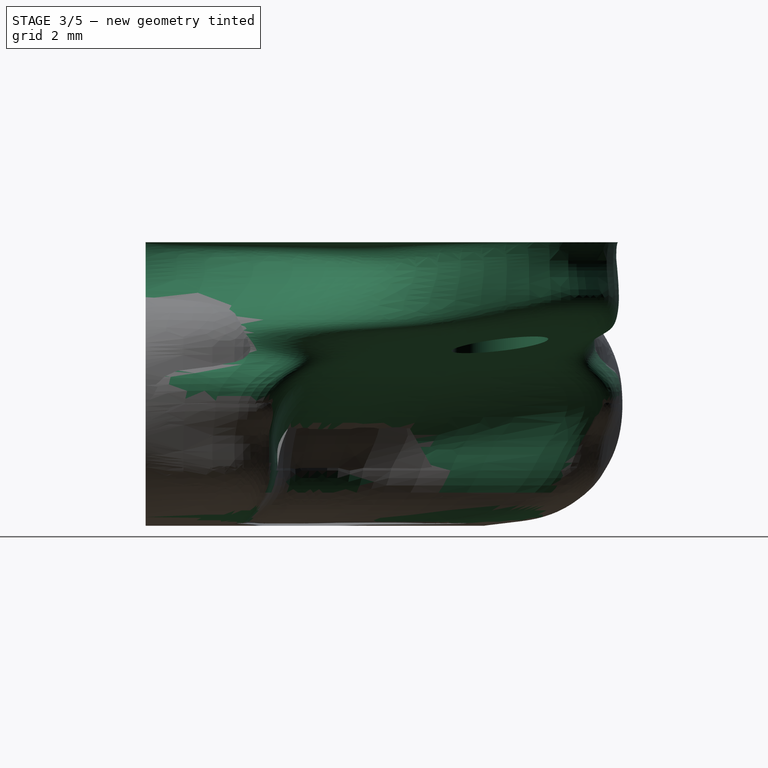
[diagram: stage 3 of 5 — right view after this stage's code; geometry added in this stage tinted green]
FEATURE [App::Point] Origin001
  Role = Origin
FEATURE [Sketcher::SketchObject] Sketch
  ArcFitTolerance = 1e-06
  AttachmentOffset = pos=(0,0,1.2) rot=(0,0,1;0rad)
  AttachmentSupport = -> [Origin]
  ExternalTypes = [0]
  FullyConstrained = true
  MakeInternals = false
  MapMode = 5
  Placement = pos=(0,0,1.2) rot=(0,0,1;0rad)
  sketch-geometry (16):
    g0: LineSegment StartX=0 StartY=10.5 StartZ=0 EndX=0 EndY=0 EndZ=0
    g1: LineSegment StartX=0 StartY=0 StartZ=0 EndX=10.5 EndY=0 EndZ=0
    g2-g8: Circle [constr] x7 (B-spline internal-alignment scaffolding for g9; pole/knot coordinates omitted)
    g9: BSplineCurve PolesCount=7 KnotsCount=5 Degree=3 IsPeriodic=0
    g10-g14: GeomPoint [constr] x5 (B-spline internal-alignment scaffolding for g9; pole/knot coordinates omitted)
    g15: LineSegment [constr] StartX=0 StartY=0 StartZ=0 EndX=70.7107 EndY=70.7107 EndZ=0
  constraints (22):
    c: PointOnObject(g0,g-2)
    c: Coincident(g0,g-1)
    c: Coincident(g0,g1)
    c: PointOnObject(g1,g-1)
    c: Weight(g2) = 1
    c: Equal(g2, g3-g8) x6
    c: InternalAlignment(g2-g8 -> g9) x7
    c: InternalAlignment(g10-g14 -> g9) x5
    c: Coincident(g2,g0)
    c: Coincident(g8,g1)
    c: Coincident(g15,g0)
    c: Symmetric(g6,g4,g15)
    c: Symmetric(g3,g7,g15)
    c: PointOnObject(g5,g15)
    c: Symmetric(g9,g9,g15)
    c: DistanceY(g0,g0) = 10.5
    c: Distance(g4,g-1) = 10
    c: DistanceY(g-1,g3) = 10.5
    c: Distance(g5,g-1) = 4.5
    c: Distance(g3,g-2) = 2
    c: Distance(g11,g-2) = 3
    c: Distance(g15,g15) = 100
FEATURE [App::Point] Origin003
  Role = Origin
FEATURE [Sketcher::SketchObject] Sketch002
  ArcFitTolerance = 1e-06
  AttachmentOffset = pos=(0,0,4) rot=(0,0,1;0rad)
  AttachmentSupport = -> [Origin002]
  ExternalTypes = [0]
  FullyConstrained = true
  MakeInternals = false
  MapMode = 5
  Placement = pos=(0,0,4) rot=(0,0,1;0rad)
  sketch-geometry (16):
    g0: LineSegment StartX=0 StartY=14.7 StartZ=0 EndX=0 EndY=0 EndZ=0
    g1: LineSegment StartX=0 StartY=0 StartZ=0 EndX=14.7 EndY=0 EndZ=0
    g2-g8: Circle [constr] x7 (B-spline internal-alignment scaffolding for g9; pole/knot coordinates omitted)
    g9: BSplineCurve PolesCount=7 KnotsCount=5 Degree=3 IsPeriodic=0
    g10-g14: GeomPoint [constr] x5 (B-spline internal-alignment scaffolding for g9; pole/knot coordinates omitted)
    g15: LineSegment [constr] StartX=0 StartY=0 StartZ=0 EndX=70.7107 EndY=70.7107 EndZ=0
  constraints (22):
    c: PointOnObject(g0,g-2)
    c: Coincident(g0,g-1)
    c: Coincident(g0,g1)
    c: PointOnObject(g1,g-1)
    c: Weight(g2) = 1
    c: Equal(g2, g3-g8) x6
    c: InternalAlignment(g2-g8 -> g9) x7
    c: InternalAlignment(g10-g14 -> g9) x5
    c: Coincident(g2,g0)
    c: Coincident(g8,g1)
    c: Coincident(g15,g0)
    c: Symmetric(g6,g4,g15)
    c: Symmetric(g3,g7,g15)
    c: PointOnObject(g5,g15)
    c: Symmetric(g9,g9,g15)
    c: DistanceY(g0,g0) = 14.7
    c: Distance(g4,g-1) = 14.6
    c: DistanceY(g-1,g3) = 14.2
    c: Distance(g5,g-1) = 5
    c: Distance(g3,g-2) = 3.5
    c: Distance(g11,g-2) = 4
    c: Distance(g15,g-1) = 100
FEATURE [Sketcher::SketchObject] Sketch004
  ArcFitTolerance = 1e-06
  AttachmentSupport = -> [Origin]
  ExternalTypes = [0]
  FullyConstrained = true
  MakeInternals = false
  MapMode = 5
  Placement = pos=(0,0,0) rot=(0.57735,0.57735,0.57735;2.0944rad)
  sketch-geometry (1):
    g0: Circle CenterX=11 CenterY=5 CenterZ=0 NormalX=0 NormalY=0 NormalZ=1 AngleXU=0 Radius=1.5
  constraints (3):
    c: Diameter(g0) = 3
    c: Distance(g0,g-1) = 5
    c: Distance(g0,g-2) = 11
FEATURE [Sketcher::SketchObject] Sketch005
  ArcFitTolerance = 1e-06
  AttachmentSupport = -> [Origin]
  ExternalTypes = [0]
  FullyConstrained = true
  MakeInternals = false
  MapMode = 5
  Placement = pos=(0,0,0) rot=(1,0,0;1.5708rad)
  sketch-geometry (1):
    g0: Circle CenterX=11 CenterY=5 CenterZ=0 NormalX=0 NormalY=0 NormalZ=1 AngleXU=0 Radius=1.5
  constraints (3):
    c: Diameter(g0) = 3
    c: Distance(g0,g-1) = 5
    c: Distance(g0,g-2) = 11
FEATURE [Sketcher::SketchObject] Sketch007
  ArcFitTolerance = 1e-06
  AttachmentSupport = -> [Origin]
  ExternalTypes = [0]
  FullyConstrained = true
  MakeInternals = false
  MapMode = 5
  sketch-geometry (1):
    g0: Circle CenterX=11 CenterY=11 CenterZ=0 NormalX=0 NormalY=0 NormalZ=1 AngleXU=0 Radius=1.5
  constraints (3):
    c: Diameter(g0) = 3
    c: Distance(g0,g-2) = 11
    c: Distance(g0,g-1) = 11
FEATURE [Sketcher::SketchObject] Sketch008
  ArcFitTolerance = 1e-06
  AttachmentOffset = pos=(0,0,-6) rot=(0,0,1;0rad)
  AttachmentSupport = -> [Origin]
  ExternalTypes = [0]
  FullyConstrained = true
  MakeInternals = false
  MapMode = 5
  Placement = pos=(0,6,-1.3e-15) rot=(1,0,0;1.5708rad)
  sketch-geometry (7):
    g0: LineSegment StartX=12.625 StartY=7.81458 StartZ=0 EndX=9.375 EndY=7.81458 EndZ=0
    g1: LineSegment StartX=9.375 StartY=7.81458 StartZ=0 EndX=7.75 EndY=5 EndZ=0
    g2: LineSegment StartX=7.75 StartY=5 StartZ=0 EndX=9.375 EndY=2.18542 EndZ=0
    g3: LineSegment StartX=9.375 StartY=2.18542 StartZ=0 EndX=12.625 EndY=2.18542 EndZ=0
    g4: LineSegment StartX=12.625 StartY=2.18542 StartZ=0 EndX=14.25 EndY=5 EndZ=0
    g5: LineSegment StartX=14.25 StartY=5 StartZ=0 EndX=12.625 EndY=7.81458 EndZ=0
    g6: Circle [constr] CenterX=11 CenterY=5 CenterZ=0 NormalX=0 NormalY=0 NormalZ=1 AngleXU=0 Radius=3.25
  constraints (17):
    c: Coincident(g0,g1)
    c: Coincident(g1,g2)
    c: Coincident(g2,g3)
    c: Coincident(g3,g4)
    c: Coincident(g4,g5)
    c: Coincident(g5,g0)
    c: Equal(g0, g1-g5) x5
    c: PointOnObject(g0,g6)
    c: PointOnObject(g1,g6)
    c: PointOnObject(g2,g6)
    c: PointOnObject(g3,g6)
    c: PointOnObject(g4,g6)
    c: PointOnObject(g5,g6)
    c: Radius(g6) = 3.25
    c: Distance(g6,g-1) = 5
    c: Distance(g6,g-2) = 11
    c: Parallel(g3,g-1)
FEATURE [Sketcher::SketchObject] Sketch009
  ArcFitTolerance = 1e-06
  AttachmentOffset = pos=(0,0,6) rot=(0,0,1;0rad)
  AttachmentSupport = -> [Origin]
  ExternalTypes = [0]
  FullyConstrained = true
  MakeInternals = false
  MapMode = 5
  Placement = pos=(6,0,0) rot=(0.57735,0.57735,0.57735;2.0944rad)
  sketch-geometry (7):
    g0: LineSegment StartX=9.375 StartY=7.81458 StartZ=0 EndX=7.75 EndY=5 EndZ=0
    g1: LineSegment StartX=7.75 StartY=5 StartZ=0 EndX=9.375 EndY=2.18542 EndZ=0
    g2: LineSegment StartX=9.375 StartY=2.18542 StartZ=0 EndX=12.625 EndY=2.18542 EndZ=0
    g3: LineSegment StartX=12.625 StartY=2.18542 StartZ=0 EndX=14.25 EndY=5 EndZ=0
    g4: LineSegment StartX=14.25 StartY=5 StartZ=0 EndX=12.625 EndY=7.81458 EndZ=0
    g5: LineSegment StartX=12.625 StartY=7.81458 StartZ=0 EndX=9.375 EndY=7.81458 EndZ=0
    g6: Circle [constr] CenterX=11 CenterY=5 CenterZ=0 NormalX=0 NormalY=0 NormalZ=1 AngleXU=0 Radius=3.25
  constraints (17):
    c: Coincident(g0,g1)
    c: Coincident(g1,g2)
    c: Coincident(g2,g3)
    c: Coincident(g3,g4)
    c: Coincident(g4,g5)
    c: Coincident(g5,g0)
    c: Equal(g0, g1-g5) x5
    c: PointOnObject(g0,g6)
    c: PointOnObject(g1,g6)
    c: PointOnObject(g2,g6)
    c: PointOnObject(g3,g6)
    c: PointOnObject(g4,g6)
    c: PointOnObject(g5,g6)
    c: Radius(g6) = 3.25
    c: Parallel(g2,g-1)
    c: Distance(g6,g-1) = 5
    c: Distance(g6,g-2) = 11
FEATURE [Sketcher::SketchObject] Sketch010  label="Hex Top"
  ArcFitTolerance = 1e-06
  AttachmentSupport = -> [Origin]
  ExternalTypes = [0]
  FullyConstrained = true
  MakeInternals = false
  MapMode = 5
  sketch-geometry (8):
    g0: LineSegment StartX=13.2981 StartY=8.7019 StartZ=0 EndX=14.1393 EndY=11.8412 EndZ=0
    g1: LineSegment StartX=14.1393 StartY=11.8412 StartZ=0 EndX=11.8412 EndY=14.1393 EndZ=0
    g2: LineSegment StartX=11.8412 StartY=14.1393 StartZ=0 EndX=8.7019 EndY=13.2981 EndZ=0
    g3: LineSegment StartX=8.7019 StartY=13.2981 StartZ=0 EndX=7.86074 EndY=10.1588 EndZ=0
    g4: LineSegment StartX=7.86074 StartY=10.1588 StartZ=0 EndX=10.1588 EndY=7.86074 EndZ=0
    g5: LineSegment StartX=10.1588 StartY=7.86074 StartZ=0 EndX=13.2981 EndY=8.7019 EndZ=0
    g6: Circle [constr] CenterX=11 CenterY=11 CenterZ=0 NormalX=0 NormalY=0 NormalZ=1 AngleXU=0 Radius=3.25
    g7: LineSegment [constr] StartX=0 StartY=0 StartZ=0 EndX=11 EndY=11 EndZ=0
  constraints (19):
    c: Coincident(g0,g1)
    c: Coincident(g1,g2)
    c: Coincident(g2,g3)
    c: Coincident(g3,g4)
    c: Coincident(g4,g5)
    c: Coincident(g5,g0)
    c: Equal(g0, g1-g5) x5
    c: PointOnObject(g0,g6)
    c: PointOnObject(g1,g6)
    c: PointOnObject(g2,g6)
    c: PointOnObject(g3,g6)
    c: PointOnObject(g4,g6)
    c: PointOnObject(g5,g6)
    c: Radius(g6) = 3.25
    c: Distance(g6,g-1) = 11
    c: Distance(g6,g-2) = 11
    c: Coincident(g7,g-1)
    c: Coincident(g7,g6)
    c: Perpendicular(g4,g7)
FEATURE [App::Point] Origin005
  Role = Origin
FEATURE [Sketcher::SketchObject] Sketch011
  ArcFitTolerance = 1e-06
  AttachmentOffset = pos=(0,0,3) rot=(0,0,1;0rad)
  AttachmentSupport = -> [Origin004]
  ExternalTypes = [0]
  FullyConstrained = true
  MakeInternals = false
  MapMode = 5
  Placement = pos=(0,0,3) rot=(0,0,1;0rad)
  sketch-geometry (16):
    g0: LineSegment StartX=0 StartY=14.3 StartZ=0 EndX=0 EndY=0 EndZ=0
    g1: LineSegment StartX=0 StartY=0 StartZ=0 EndX=14.3 EndY=0 EndZ=0
    g2-g8: Circle [constr] x7 (B-spline internal-alignment scaffolding for g9; pole/knot coordinates omitted)
    g9: BSplineCurve PolesCount=7 KnotsCount=5 Degree=3 IsPeriodic=0
    g10-g14: GeomPoint [constr] x5 (B-spline internal-alignment scaffolding for g9; pole/knot coordinates omitted)
    g15: LineSegment [constr] StartX=0 StartY=0 StartZ=0 EndX=70.7107 EndY=70.7107 EndZ=0
  constraints (22):
    c: PointOnObject(g0,g-2)
    c: Coincident(g0,g-1)
    c: Coincident(g0,g1)
    c: PointOnObject(g1,g-1)
    c: Weight(g2) = 1
    c: Equal(g2, g3-g8) x6
    c: InternalAlignment(g2-g8 -> g9) x7
    c: InternalAlignment(g10-g14 -> g9) x5
    c: Coincident(g2,g0)
    c: Coincident(g8,g1)
    c: Coincident(g15,g0)
    c: Symmetric(g6,g4,g15)
    c: Symmetric(g3,g7,g15)
    c: PointOnObject(g5,g15)
    c: Symmetric(g9,g9,g15)
    c: DistanceY(g0,g0) = 14.3
    c: Distance(g4,g-1) = 13.5
    c: DistanceY(g-1,g3) = 14.3
    c: Distance(g5,g-1) = 5
    c: Distance(g3,g-2) = 3.5
    c: Distance(g11,g-2) = 4
    c: Distance(g15,g15) = 100
FEATURE [App::Point] Origin007
  Role = Origin
FEATURE [App::Point] Origin009
  Role = Origin
FEATURE [App::DocumentObjectGroup] Group  label="Origins"
  Group = -> [Origin004,Origin002,Origin006,Origin008,Origin012,Origin014]
FEATURE [Sketcher::SketchObject] Sketch014
  ArcFitTolerance = 1e-06
  AttachmentOffset = pos=(0,0,2) rot=(0,0,1;0rad)
  AttachmentSupport = -> [Origin004]
  ExternalTypes = [0]
  FullyConstrained = true
  MakeInternals = false
  MapMode = 5
  Placement = pos=(0,0,2) rot=(0,0,1;0rad)
  sketch-geometry (16):
    g0: LineSegment StartX=0 StartY=13.4 StartZ=0 EndX=0 EndY=0 EndZ=0
    g1: LineSegment StartX=0 StartY=0 StartZ=0 EndX=13.4 EndY=0 EndZ=0
    g2-g8: Circle [constr] x7 (B-spline internal-alignment scaffolding for g9; pole/knot coordinates omitted)
    g9: BSplineCurve PolesCount=7 KnotsCount=5 Degree=3 IsPeriodic=0
    g10-g14: GeomPoint [constr] x5 (B-spline internal-alignment scaffolding for g9; pole/knot coordinates omitted)
    g15: LineSegment [constr] StartX=0 StartY=0 StartZ=0 EndX=70.7107 EndY=70.7107 EndZ=0
  constraints (22):
    c: PointOnObject(g0,g-2)
    c: Coincident(g0,g-1)
    c: Coincident(g0,g1)
    c: PointOnObject(g1,g-1)
    c: Weight(g2) = 1
    c: Equal(g2, g3-g8) x6
    c: InternalAlignment(g2-g8 -> g9) x7
    c: InternalAlignment(g10-g14 -> g9) x5
    c: Coincident(g2,g0)
    c: Coincident(g8,g1)
    c: Coincident(g15,g0)
    c: Symmetric(g6,g4,g15)
    c: Symmetric(g3,g7,g15)
    c: PointOnObject(g5,g15)
    c: Symmetric(g9,g9,g15)
    c: DistanceY(g0,g0) = 13.4
    c: Distance(g4,g-1) = 12.5
    c: DistanceY(g-1,g3) = 13.4
    c: Distance(g5,g-1) = 5
    c: Distance(g3,g-2) = 3.5
    c: Distance(g11,g-2) = 3.7
    c: Distance(g15,g15) = 100
FEATURE [Sketcher::SketchObject] Sketch016
  ArcFitTolerance = 1e-06
  AttachmentOffset = pos=(0,0,1.275) rot=(0,0,1;0rad)
  AttachmentSupport = -> [Origin004]
  ExternalTypes = [0]
  FullyConstrained = true
  MakeInternals = false
  MapMode = 5
  Placement = pos=(0,0,1.275) rot=(0,0,1;0rad)
  sketch-geometry (16):
    g0: LineSegment StartX=0 StartY=11 StartZ=0 EndX=0 EndY=0 EndZ=0
    g1: LineSegment StartX=0 StartY=0 StartZ=0 EndX=11 EndY=0 EndZ=0
    g2-g8: Circle [constr] x7 (B-spline internal-alignment scaffolding for g9; pole/knot coordinates omitted)
    g9: BSplineCurve PolesCount=7 KnotsCount=5 Degree=3 IsPeriodic=0
    g10-g14: GeomPoint [constr] x5 (B-spline internal-alignment scaffolding for g9; pole/knot coordinates omitted)
    g15: LineSegment [constr] StartX=0 StartY=0 StartZ=0 EndX=70.7107 EndY=70.7107 EndZ=0
  constraints (22):
    c: PointOnObject(g0,g-2)
    c: Coincident(g0,g-1)
    c: Coincident(g0,g1)
    c: PointOnObject(g1,g-1)
    c: Weight(g2) = 1
    c: Equal(g2, g3-g8) x6
    c: InternalAlignment(g2-g8 -> g9) x7
    c: InternalAlignment(g10-g14 -> g9) x5
    c: Coincident(g2,g0)
    c: Coincident(g8,g1)
    c: Coincident(g15,g0)
    c: Symmetric(g6,g4,g15)
    c: Symmetric(g3,g7,g15)
    c: PointOnObject(g5,g15)
    c: Symmetric(g9,g9,g15)
    c: DistanceY(g0,g0) = 11
    c: Distance(g4,g-1) = 10.5
    c: DistanceY(g-1,g3) = 11
    c: Distance(g5,g-1) = 4
    c: Distance(g3,g-2) = 2
    c: Distance(g11,g-2) = 3
    c: Distance(g15,g15) = 100
FEATURE [Sketcher::SketchObject] Sketch017
  ArcFitTolerance = 1e-06
  AttachmentOffset = pos=(0,0,5) rot=(0,0,1;0rad)
  AttachmentSupport = -> [Origin002]
  ExternalTypes = [0]
  FullyConstrained = true
  MakeInternals = false
  MapMode = 5
  Placement = pos=(0,0,5) rot=(0,0,1;0rad)
  sketch-geometry (16):
    g0: LineSegment StartX=0 StartY=14.8 StartZ=0 EndX=0 EndY=0 EndZ=0
    g1: LineSegment StartX=0 StartY=0 StartZ=0 EndX=14.8 EndY=0 EndZ=0
    g2-g8: Circle [constr] x7 (B-spline internal-alignment scaffolding for g9; pole/knot coordinates omitted)
    g9: BSplineCurve PolesCount=7 KnotsCount=5 Degree=3 IsPeriodic=0
    g10-g14: GeomPoint [constr] x5 (B-spline internal-alignment scaffolding for g9; pole/knot coordinates omitted)
    g15: LineSegment [constr] StartX=0 StartY=0 StartZ=0 EndX=70.7107 EndY=70.7107 EndZ=0
  constraints (22):
    c: PointOnObject(g0,g-2)
    c: Coincident(g0,g-1)
    c: Coincident(g0,g1)
    c: PointOnObject(g1,g-1)
    c: Weight(g2) = 1
    c: Equal(g2, g3-g8) x6
    c: InternalAlignment(g2-g8 -> g9) x7
    c: InternalAlignment(g10-g14 -> g9) x5
    c: Coincident(g2,g0)
    c: Coincident(g8,g1)
    c: Coincident(g15,g0)
    c: Symmetric(g6,g4,g15)
    c: Symmetric(g3,g7,g15)
    c: PointOnObject(g5,g15)
    c: Symmetric(g9,g9,g15)
    c: DistanceY(g0,g0) = 14.8
    c: Distance(g4,g-1) = 14.9
    c: DistanceY(g-1,g3) = 14.6
    c: Distance(g5,g-1) = 6.5
    c: Distance(g3,g-2) = 3.6
    c: Distance(g11,g-2) = 4.3
    c: Distance(g15,g-1) = 100
FEATURE [Sketcher::SketchObject] Sketch022
  ArcFitTolerance = 1e-06
  AttachmentOffset = pos=(0,0,10) rot=(0,0,1;0rad)
  AttachmentSupport = -> [Origin002]
  ExternalTypes = [0]
  FullyConstrained = true
  MakeInternals = false
  MapMode = 5
  Placement = pos=(0,0,10) rot=(0,0,1;0rad)
  sketch-geometry (16):
    g0: LineSegment StartX=0 StartY=12.2 StartZ=0 EndX=0 EndY=0 EndZ=0
    g1: LineSegment StartX=0 StartY=0 StartZ=0 EndX=12.2 EndY=0 EndZ=0
    g2-g8: Circle [constr] x7 (B-spline internal-alignment scaffolding for g9; pole/knot coordinates omitted)
    g9: BSplineCurve PolesCount=7 KnotsCount=5 Degree=3 IsPeriodic=0
    g10-g14: GeomPoint [constr] x5 (B-spline internal-alignment scaffolding for g9; pole/knot coordinates omitted)
    g15: LineSegment [constr] StartX=0 StartY=0 StartZ=0 EndX=70.7107 EndY=70.7107 EndZ=0
  constraints (22):
    c: PointOnObject(g0,g-2)
    c: Coincident(g0,g-1)
    c: Coincident(g0,g1)
    c: PointOnObject(g1,g-1)
    c: Weight(g2) = 1
    c: Equal(g2, g3-g8) x6
    c: InternalAlignment(g2-g8 -> g9) x7
    c: InternalAlignment(g10-g14 -> g9) x5
    c: Coincident(g2,g0)
    c: Coincident(g8,g1)
    c: Coincident(g15,g0)
    c: Symmetric(g6,g4,g15)
    c: Symmetric(g3,g7,g15)
    c: PointOnObject(g5,g15)
    c: Symmetric(g9,g9,g15)
    c: DistanceY(g0,g0) = 12.2
    c: Distance(g4,g-1) = 14.8
    c: DistanceY(g-1,g3) = 11.5
    c: Distance(g5,g-1) = 21.3
    c: Distance(g3,g-2) = 4.5
    c: Distance(g11,g-2) = 7.7
    c: Distance(g15,g-1) = 100
FEATURE [Sketcher::SketchObject] Sketch023
  ArcFitTolerance = 1e-06
  AttachmentOffset = pos=(0,0,8) rot=(0,0,1;0rad)
  AttachmentSupport = -> [Origin002]
  ExternalTypes = [0]
  FullyConstrained = true
  MakeInternals = false
  MapMode = 5
  Placement = pos=(0,0,8) rot=(0,0,1;0rad)
  sketch-geometry (16):
    g0: LineSegment StartX=0 StartY=13.1 StartZ=0 EndX=0 EndY=0 EndZ=0
    g1: LineSegment StartX=0 StartY=0 StartZ=0 EndX=13.1 EndY=0 EndZ=0
    g2-g8: Circle [constr] x7 (B-spline internal-alignment scaffolding for g9; pole/knot coordinates omitted)
    g9: BSplineCurve PolesCount=7 KnotsCount=5 Degree=3 IsPeriodic=0
    g10-g14: GeomPoint [constr] x5 (B-spline internal-alignment scaffolding for g9; pole/knot coordinates omitted)
    g15: LineSegment [constr] StartX=0 StartY=0 StartZ=0 EndX=70.7107 EndY=70.7107 EndZ=0
  constraints (22):
    c: PointOnObject(g0,g-2)
    c: Coincident(g0,g-1)
    c: Coincident(g0,g1)
    c: PointOnObject(g1,g-1)
    c: Weight(g2) = 1
    c: Equal(g2, g3-g8) x6
    c: InternalAlignment(g2-g8 -> g9) x7
    c: InternalAlignment(g10-g14 -> g9) x5
    c: Coincident(g2,g0)
    c: Coincident(g8,g1)
    c: Coincident(g15,g0)
    c: Symmetric(g6,g4,g15)
    c: Symmetric(g3,g7,g15)
    c: PointOnObject(g5,g15)
    c: Symmetric(g9,g9,g15)
    c: DistanceY(g0,g0) = 13.1
    c: Distance(g4,g-1) = 14.9
    c: DistanceY(g-1,g3) = 13.1
    c: Distance(g5,g-1) = 20.9
    c: Distance(g3,g-2) = 4
    c: Distance(g11,g-2) = 8
    c: Distance(g15,g-1) = 100
FEATURE [Sketcher::SketchObject] Sketch027
  ArcFitTolerance = 1e-06
  AttachmentOffset = pos=(0,0,6) rot=(0,0,1;0rad)
  AttachmentSupport = -> [Origin002]
  ExternalTypes = [0]
  FullyConstrained = true
  MakeInternals = false
  MapMode = 5
  Placement = pos=(0,0,6) rot=(0,0,1;0rad)
  sketch-geometry (16):
    g0: LineSegment StartX=0 StartY=14.6 StartZ=0 EndX=0 EndY=0 EndZ=0
    g1: LineSegment StartX=0 StartY=0 StartZ=0 EndX=14.6 EndY=0 EndZ=0
    g2-g8: Circle [constr] x7 (B-spline internal-alignment scaffolding for g9; pole/knot coordinates omitted)
    g9: BSplineCurve PolesCount=7 KnotsCount=5 Degree=3 IsPeriodic=0
    g10-g14: GeomPoint [constr] x5 (B-spline internal-alignment scaffolding for g9; pole/knot coordinates omitted)
    g15: LineSegment [constr] StartX=0 StartY=0 StartZ=0 EndX=70.7107 EndY=70.7107 EndZ=0
  constraints (22):
    c: PointOnObject(g0,g-2)
    c: Coincident(g0,g-1)
    c: Coincident(g0,g1)
    c: PointOnObject(g1,g-1)
    c: Weight(g2) = 1
    c: Equal(g2, g3-g8) x6
    c: InternalAlignment(g2-g8 -> g9) x7
    c: InternalAlignment(g10-g14 -> g9) x5
    c: Coincident(g2,g0)
    c: Coincident(g8,g1)
    c: Coincident(g15,g0)
    c: Symmetric(g6,g4,g15)
    c: Symmetric(g3,g7,g15)
    c: PointOnObject(g5,g15)
    c: Symmetric(g9,g9,g15)
    c: DistanceY(g0,g0) = 14.6
    c: Distance(g4,g-1) = 12.9
    c: DistanceY(g-1,g3) = 14.6
    c: Distance(g5,g-1) = 10
    c: Distance(g3,g-2) = 4.7
    c: Distance(g11,g-2) = 5.5
    c: Distance(g15,g-1) = 100
FEATURE [Sketcher::SketchObject] Sketch028
  ArcFitTolerance = 1e-06
  AttachmentOffset = pos=(0,0,7) rot=(0,0,1;0rad)
  AttachmentSupport = -> [Origin002]
  ExternalTypes = [0]
  FullyConstrained = true
  MakeInternals = false
  MapMode = 5
  Placement = pos=(0,0,7) rot=(0,0,1;0rad)
  sketch-geometry (16):
    g0: LineSegment StartX=0 StartY=14 StartZ=0 EndX=0 EndY=0 EndZ=0
    g1: LineSegment StartX=0 StartY=0 StartZ=0 EndX=14 EndY=0 EndZ=0
    g2-g8: Circle [constr] x7 (B-spline internal-alignment scaffolding for g9; pole/knot coordinates omitted)
    g9: BSplineCurve PolesCount=7 KnotsCount=5 Degree=3 IsPeriodic=0
    g10-g14: GeomPoint [constr] x5 (B-spline internal-alignment scaffolding for g9; pole/knot coordinates omitted)
    g15: LineSegment [constr] StartX=0 StartY=0 StartZ=0 EndX=70.7107 EndY=70.7107 EndZ=0
  constraints (22):
    c: PointOnObject(g0,g-2)
    c: Coincident(g0,g-1)
    c: Coincident(g0,g1)
    c: PointOnObject(g1,g-1)
    c: Weight(g2) = 1
    c: Equal(g2, g3-g8) x6
    c: InternalAlignment(g2-g8 -> g9) x7
    c: InternalAlignment(g10-g14 -> g9) x5
    c: Coincident(g2,g0)
    c: Coincident(g8,g1)
    c: Coincident(g15,g0)
    c: Symmetric(g6,g4,g15)
    c: Symmetric(g3,g7,g15)
    c: PointOnObject(g5,g15)
    c: Symmetric(g9,g9,g15)
    c: DistanceY(g0,g0) = 14
    c: Distance(g4,g-1) = 14.4
    c: DistanceY(g-1,g3) = 13.8
    c: Distance(g5,g-1) = 17
    c: Distance(g3,g-2) = 4.5
    c: Distance(g11,g-2) = 8
    c: Distance(g15,g-1) = 100
FEATURE [Sketcher::SketchObject] Sketch024
  ArcFitTolerance = 1e-06
  AttachmentOffset = pos=(0,0,8.8) rot=(0,0,1;0rad)
  AttachmentSupport = -> [Origin002]
  ExternalTypes = [0]
  FullyConstrained = true
  MakeInternals = false
  MapMode = 5
  Placement = pos=(0,0,8.8) rot=(0,0,1;0rad)
  sketch-geometry (16):
    g0: LineSegment StartX=0 StartY=12.5 StartZ=0 EndX=0 EndY=0 EndZ=0
    g1: LineSegment StartX=0 StartY=0 StartZ=0 EndX=12.5 EndY=0 EndZ=0
    g2-g8: Circle [constr] x7 (B-spline internal-alignment scaffolding for g9; pole/knot coordinates omitted)
    g9: BSplineCurve PolesCount=7 KnotsCount=5 Degree=3 IsPeriodic=0
    g10-g14: GeomPoint [constr] x5 (B-spline internal-alignment scaffolding for g9; pole/knot coordinates omitted)
    g15: LineSegment [constr] StartX=0 StartY=0 StartZ=0 EndX=70.7107 EndY=70.7107 EndZ=0
  constraints (22):
    c: PointOnObject(g0,g-2)
    c: Coincident(g0,g-1)
    c: Coincident(g0,g1)
    c: PointOnObject(g1,g-1)
    c: Weight(g2) = 1
    c: Equal(g2, g3-g8) x6
    c: InternalAlignment(g2-g8 -> g9) x7
    c: InternalAlignment(g10-g14 -> g9) x5
    c: Coincident(g2,g0)
    c: Coincident(g8,g1)
    c: Coincident(g15,g0)
    c: Symmetric(g6,g4,g15)
    c: Symmetric(g3,g7,g15)
    c: PointOnObject(g5,g15)
    c: Symmetric(g9,g9,g15)
    c: DistanceY(g0,g0) = 12.5
    c: Distance(g4,g-1) = 15
    c: DistanceY(g-1,g3) = 12.1
    c: Distance(g5,g-1) = 20.9
    c: Distance(g3,g-2) = 5.2
    c: Distance(g11,g-2) = 8.3
    c: Distance(g15,g-1) = 100
FEATURE [Sketcher::SketchObject] Sketch029
  ArcFitTolerance = 1e-06
  AttachmentOffset = pos=(0,0,9.6) rot=(0,0,1;0rad)
  AttachmentSupport = -> [Origin002]
  ExternalTypes = [0]
  FullyConstrained = true
  MakeInternals = false
  MapMode = 5
  Placement = pos=(0,0,9.6) rot=(0,0,1;0rad)
  sketch-geometry (16):
    g0: LineSegment StartX=0 StartY=12.2 StartZ=0 EndX=0 EndY=0 EndZ=0
    g1: LineSegment StartX=0 StartY=0 StartZ=0 EndX=12.2 EndY=0 EndZ=0
    g2-g8: Circle [constr] x7 (B-spline internal-alignment scaffolding for g9; pole/knot coordinates omitted)
    g9: BSplineCurve PolesCount=7 KnotsCount=5 Degree=3 IsPeriodic=0
    g10-g14: GeomPoint [constr] x5 (B-spline internal-alignment scaffolding for g9; pole/knot coordinates omitted)
    g15: LineSegment [constr] StartX=0 StartY=0 StartZ=0 EndX=70.7107 EndY=70.7107 EndZ=0
  constraints (22):
    c: PointOnObject(g0,g-2)
    c: Coincident(g0,g-1)
    c: Coincident(g0,g1)
    c: PointOnObject(g1,g-1)
    c: Weight(g2) = 1
    c: Equal(g2, g3-g8) x6
    c: InternalAlignment(g2-g8 -> g9) x7
    c: InternalAlignment(g10-g14 -> g9) x5
    c: Coincident(g2,g0)
    c: Coincident(g8,g1)
    c: Coincident(g15,g0)
    c: Symmetric(g6,g4,g15)
    c: Symmetric(g3,g7,g15)
    c: PointOnObject(g5,g15)
    c: Symmetric(g9,g9,g15)
    c: DistanceY(g0,g0) = 12.2
    c: Distance(g4,g-1) = 15
    c: DistanceY(g-1,g3) = 11.2
    c: Distance(g5,g-1) = 20.85
    c: Distance(g3,g-2) = 5.2
    c: Distance(g11,g-2) = 8.3
    c: Distance(g15,g-1) = 100
FEATURE [PartDesign::AdditiveLoft] AdditiveLoft
  Closed = false
  Profile = -> Sketch
  Refine = true
  Ruled = false
  Sections = -> [Sketch016,Sketch014,Sketch011,Sketch002,Sketch017,Sketch027,Sketch028,Sketch023,Sketch024,Sketch029,Sketch022]
  Suppressed = false
FEATURE [PartDesign::Pocket] Pocket
  BaseFeature = -> AdditiveLoft
  Direction = (0,0,-1)
  Length = 11
  Length2 = 5
  Profile = -> Sketch007
  ReferenceAxis = -> Sketch007 [N_Axis]
  Refine = true
  Reversed = true
  SideType = 0
  Suppressed = false
  Type = 0
  Type2 = 0
FEATURE [PartDesign::Pocket] Pocket011
  BaseFeature = -> Pocket010
  Direction = (0,0,-1)
  Length = 9.5
  Length2 = 5
  Profile = -> Sketch037
  ReferenceAxis = -> Sketch037 [N_Axis]
  Refine = true
  Reversed = true
  SideType = 0
  Suppressed = false
  Type = 0
  Type2 = 0
FEATURE [PartDesign::Chamfer] Chamfer001
  Angle = 45
  Base = -> Pocket011 [Edge5]
  BaseFeature = -> Pocket011
  ChamferType = 0
  FlipDirection = false
  Refine = true
  Size = 7.5
  Size2 = 1
  SupportTransform = false
  Suppressed = false
  UseAllEdges = false
FEATURE [PartDesign::Body] Body001  label="2_ways"
  AllowCompound = false
  Group = -> [Sketch030,Sketch031,AdditiveLoft001,Sketch032,Sketch033,Sketch034,Pocket006,Pocket007,Pocket008,Sketch035,Pocket009,Sketch036,Pocket010,Sketch037,Pocket011,Sketch038,Chamfer001]
  Origin = -> Origin010
  Placement = pos=(0,0,0) rot=(0.862856,-0.357407,0.357407;1.71777rad)
  Tip = -> Chamfer001
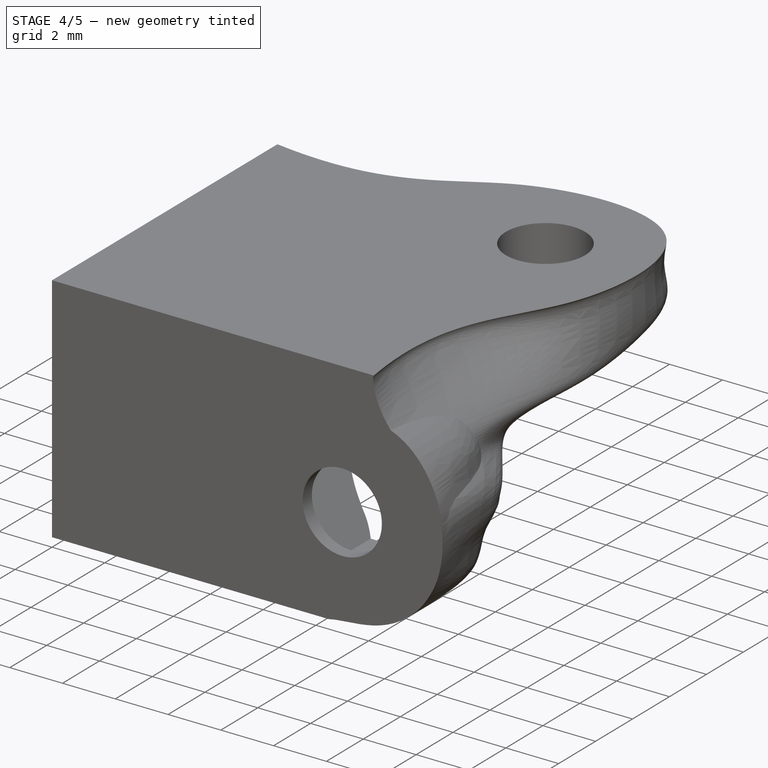
[diagram: stage 4 of 5 — iso view after this stage's code; geometry added in this stage tinted green]
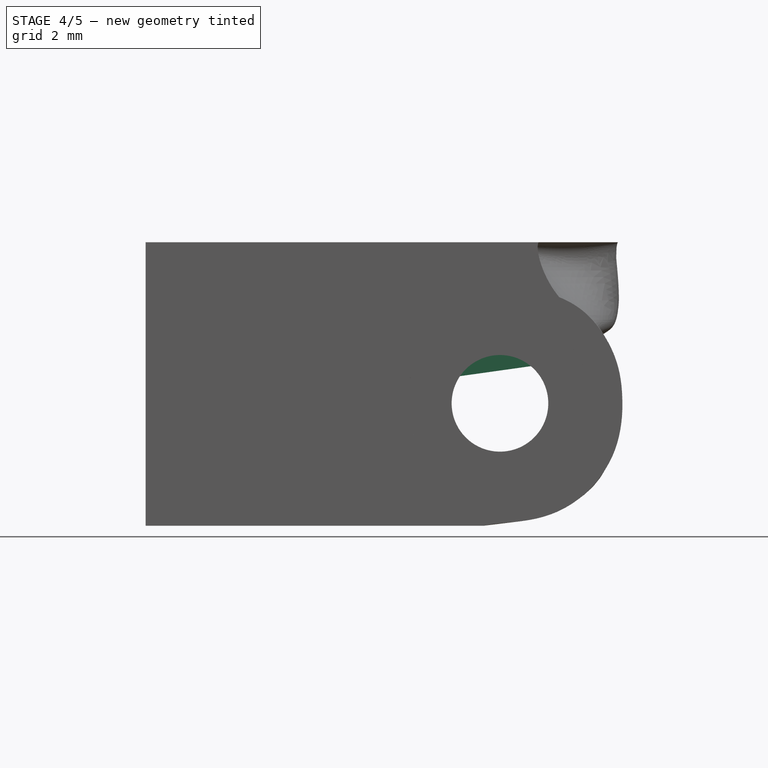
[diagram: stage 4 of 5 — front view after this stage's code; geometry added in this stage tinted green]
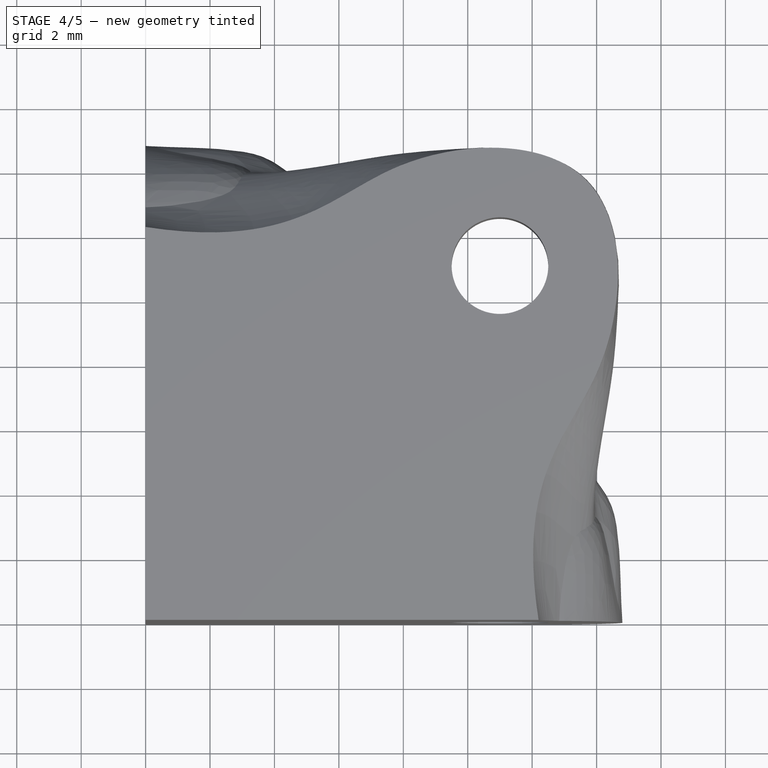
[diagram: stage 4 of 5 — top view after this stage's code; geometry added in this stage tinted green]
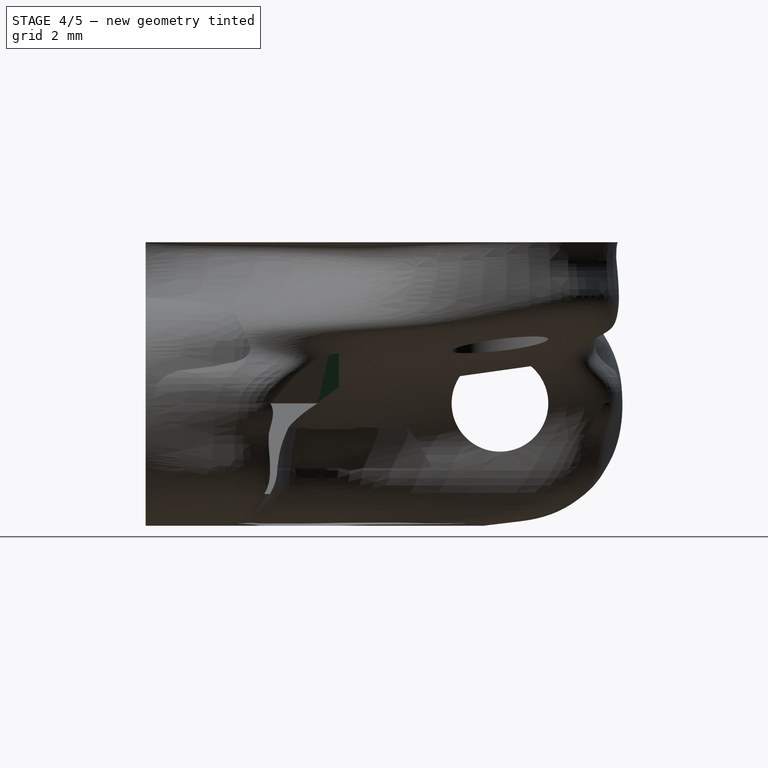
[diagram: stage 4 of 5 — right view after this stage's code; geometry added in this stage tinted green]
FEATURE [PartDesign::Pocket] Pocket001
  BaseFeature = -> Pocket
  Direction = (-1,0,0)
  Length = 6
  Length2 = 5
  Profile = -> Sketch004
  ReferenceAxis = -> Sketch004 [N_Axis]
  Refine = true
  Reversed = true
  SideType = 0
  Suppressed = false
  Type = 0
  Type2 = 0
FEATURE [PartDesign::Pocket] Pocket002
  BaseFeature = -> Pocket001
  Direction = (0,1,-2e-16)
  Length = 6
  Length2 = 5
  Profile = -> Sketch005
  ReferenceAxis = -> Sketch005 [N_Axis]
  Refine = true
  SideType = 0
  Suppressed = false
  Type = 0
  Type2 = 0
FEATURE [PartDesign::Pocket] Pocket003
  BaseFeature = -> Pocket002
  Direction = (0,1,-2e-16)
  Length = 5.5
  Length2 = 5
  Profile = -> Sketch008
  ReferenceAxis = -> Sketch008 [N_Axis]
  Refine = true
  Reversed = true
  SideType = 0
  Suppressed = false
  Type = 0
  Type2 = 0
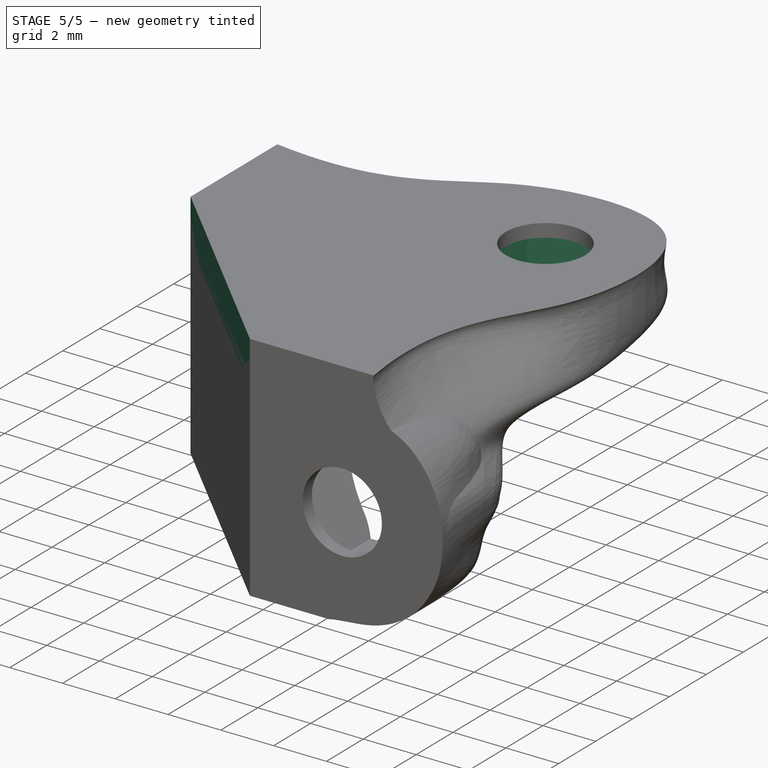
[diagram: stage 5 of 5 — iso view after this stage's code; geometry added in this stage tinted green]
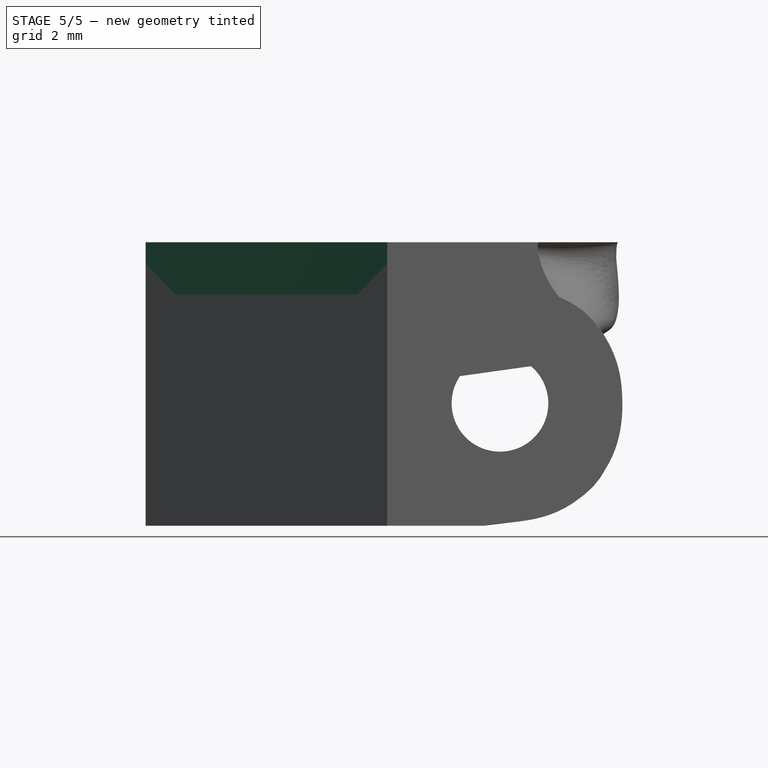
[diagram: stage 5 of 5 — front view after this stage's code; geometry added in this stage tinted green]
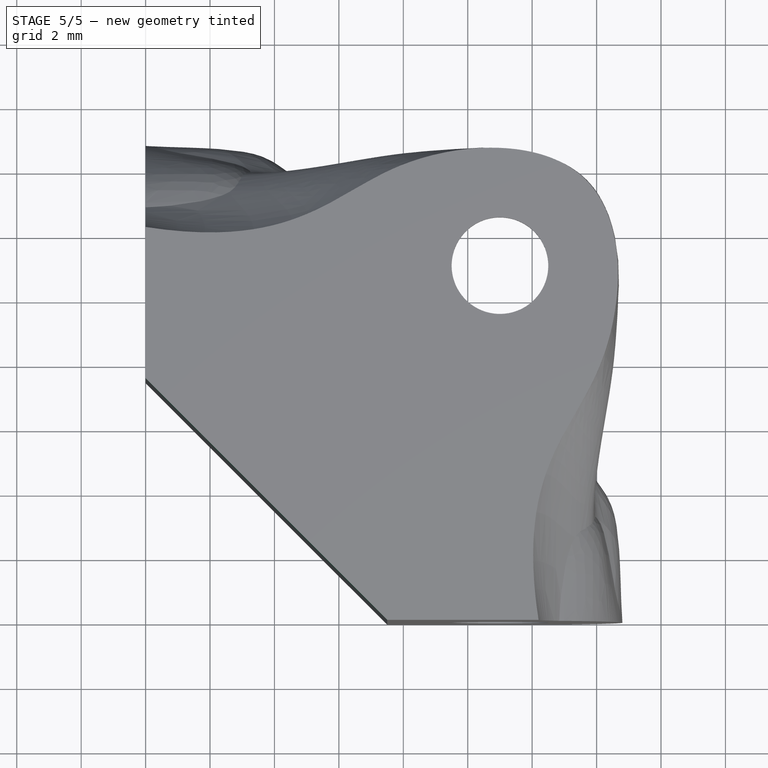
[diagram: stage 5 of 5 — top view after this stage's code; geometry added in this stage tinted green]
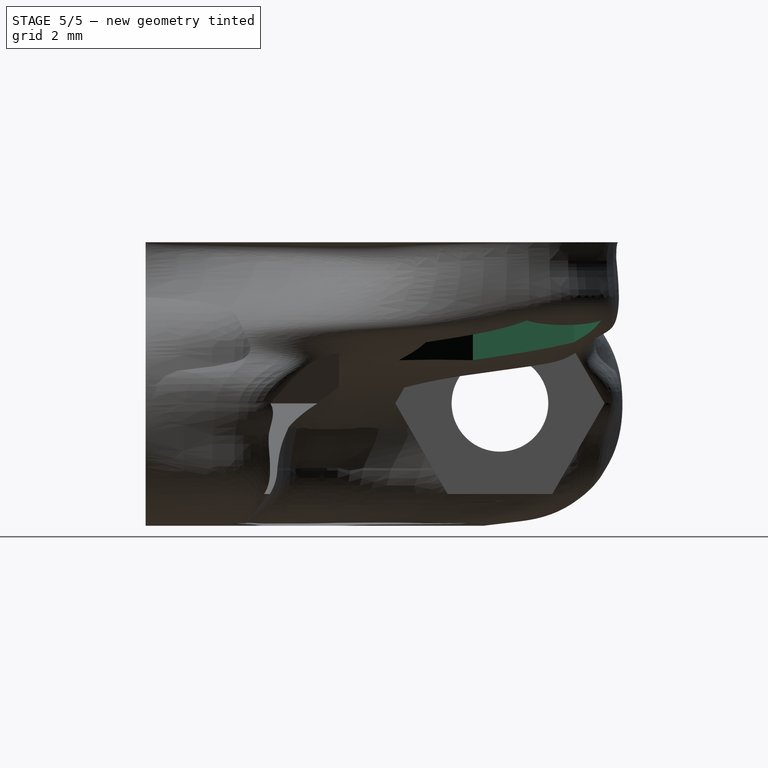
[diagram: stage 5 of 5 — right view after this stage's code; geometry added in this stage tinted green]
FEATURE [PartDesign::Pocket] Pocket004
  BaseFeature = -> Pocket003
  Direction = (-1,0,0)
  Length = 5.5
  Length2 = 5
  Profile = -> Sketch009
  ReferenceAxis = -> Sketch009 [N_Axis]
  Refine = true
  SideType = 0
  Suppressed = false
  Type = 0
  Type2 = 0
FEATURE [PartDesign::Pocket] Pocket005
  BaseFeature = -> Pocket004
  Direction = (0,0,-1)
  Length = 9.5
  Length2 = 5
  Profile = -> Sketch010
  ReferenceAxis = -> Sketch010 [N_Axis]
  Refine = true
  Reversed = true
  SideType = 0
  Suppressed = false
  Type = 0
  Type2 = 0
FEATURE [PartDesign::Chamfer] Chamfer
  Angle = 45
  Base = -> Pocket005 [Edge5]
  BaseFeature = -> Pocket005
  ChamferType = 0
  FlipDirection = false
  Refine = true
  Size = 7.5
  Size2 = 1
  SupportTransform = false
  Suppressed = false
  UseAllEdges = false
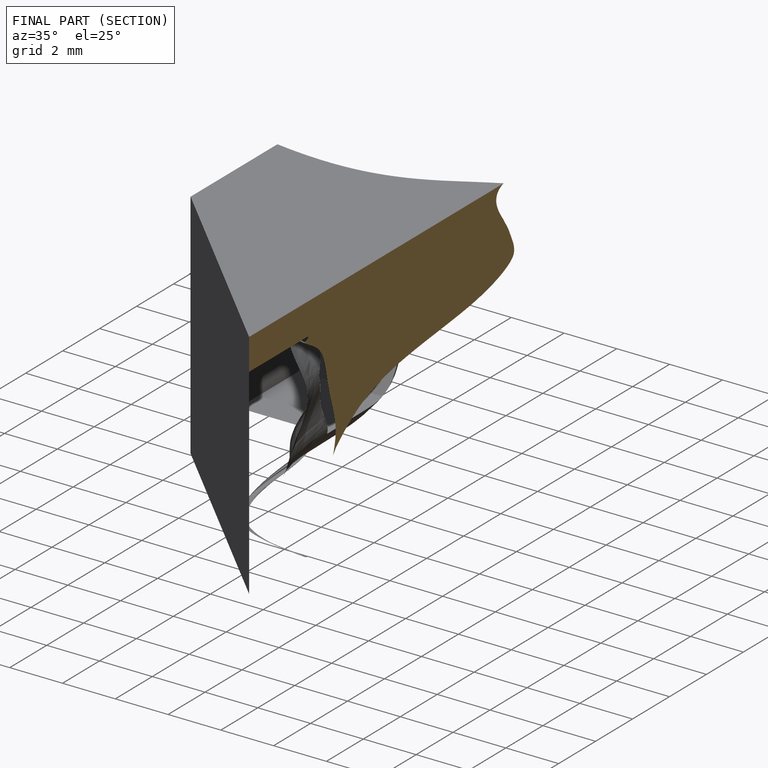
[diagram: finished part — half-section view (interior)]
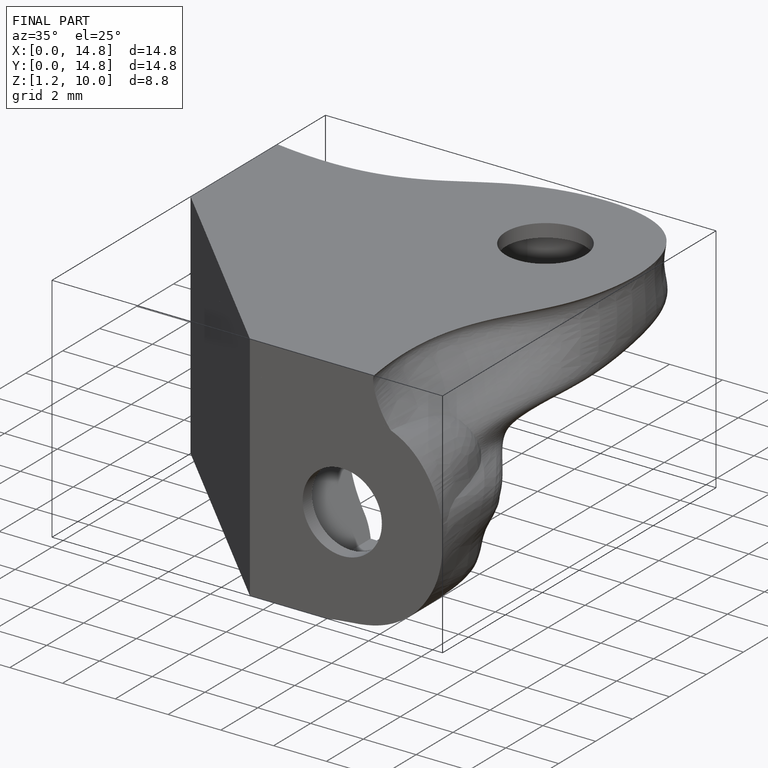
[diagram: finished part — iso view with bounding-box wireframe]
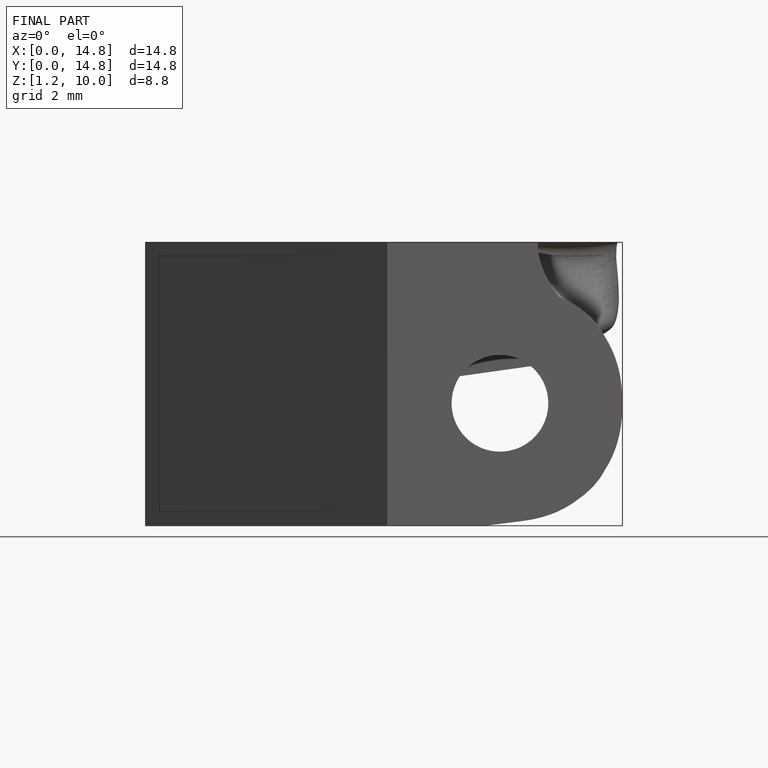
[diagram: finished part — front view with bounding-box wireframe]
